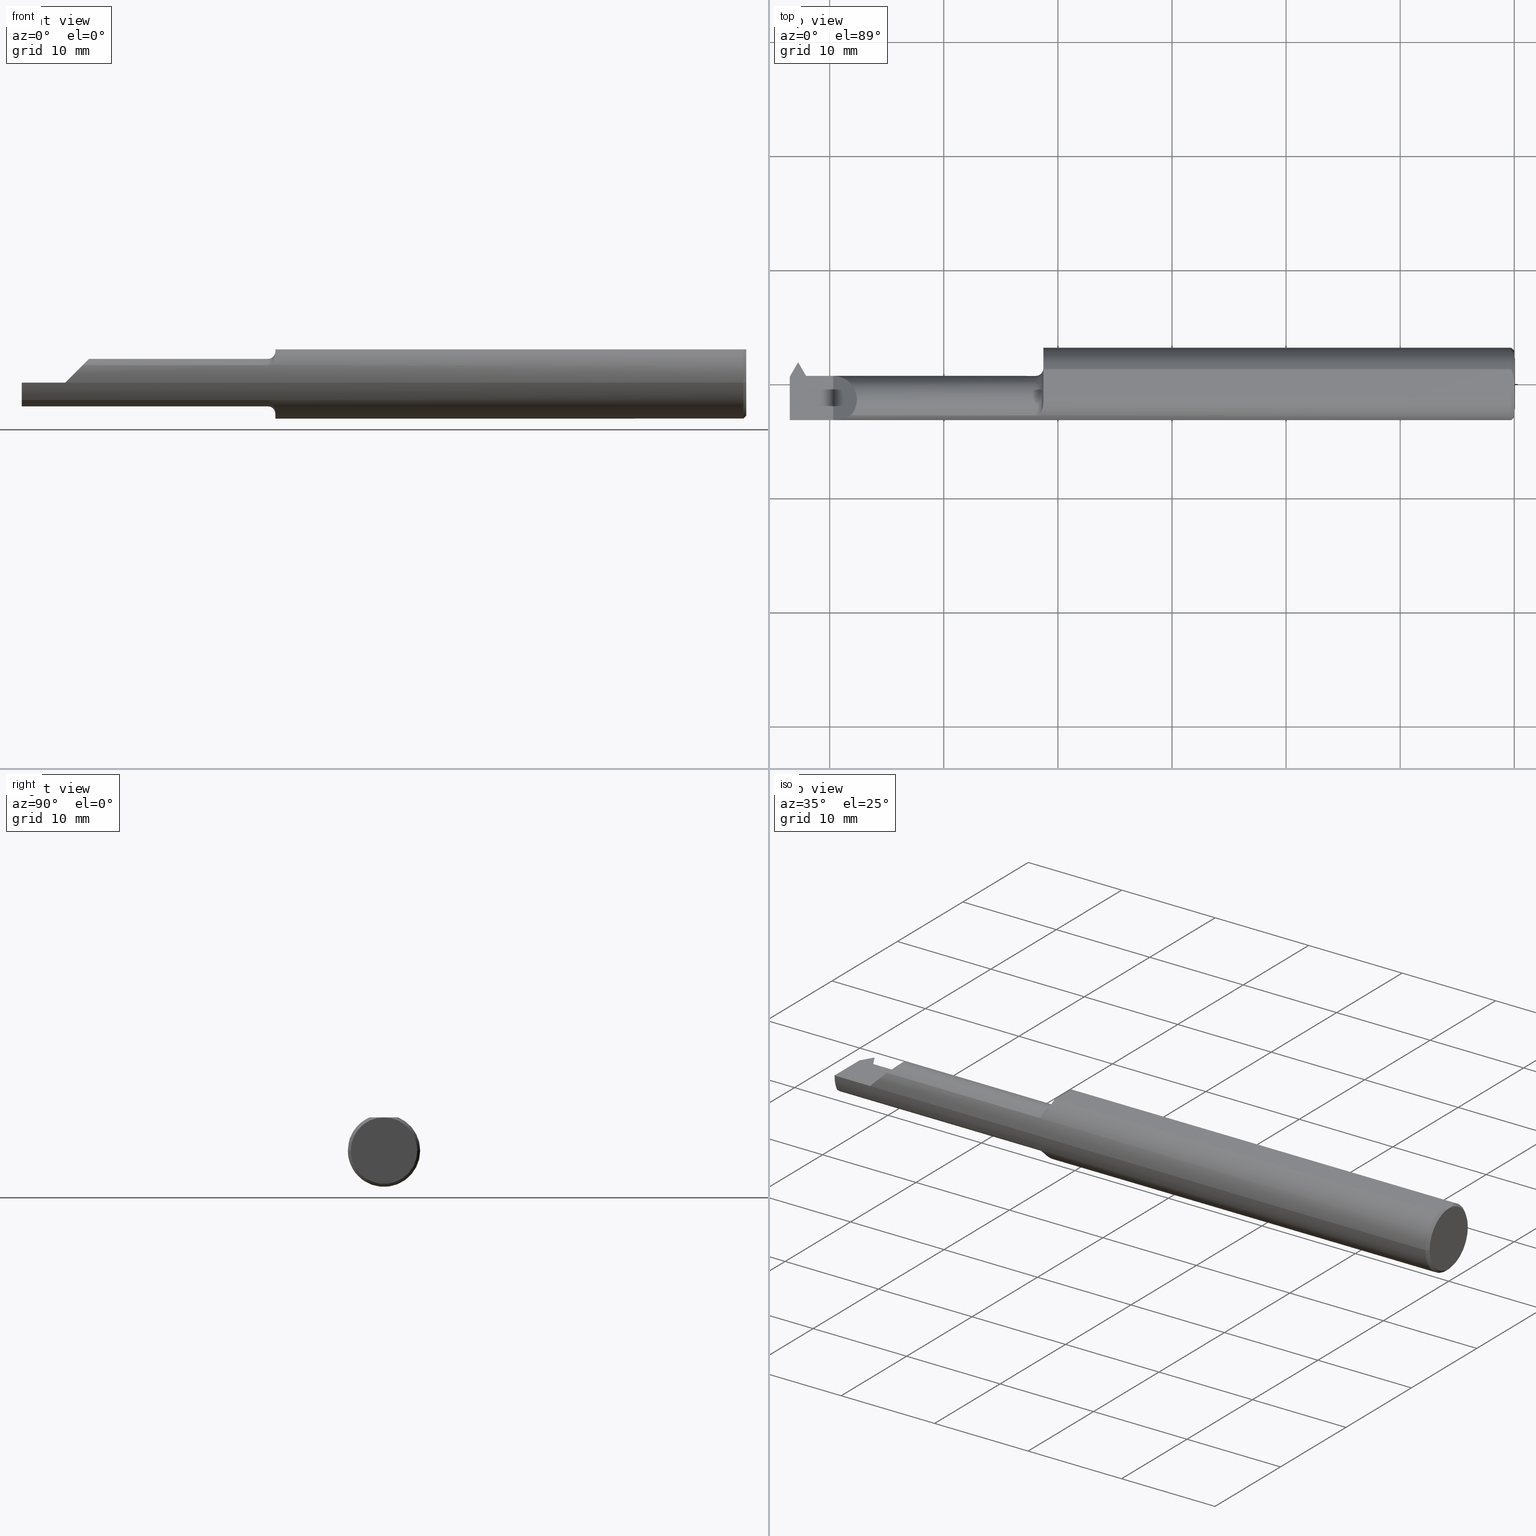
[diagram: canonical four-view strip — front | top / right | iso, engineering-drawing reading convention]
A machine part, canonical four-view strip (front | top / right | iso — engineering-drawing reading convention). The complete STEP part file that produces these views, byte-faithful:
ISO-10303-21;
HEADER;
FILE_DESCRIPTION (( 'STEP AP203' ),
    '1' );
FILE_NAME ('231738-LHTT200800.STEP',
    '2025-01-23T20:45:03',
    ( '' ),
    ( '' ),
    'SwSTEP 2.0',
    'SolidWorks 2024',
    '' );
FILE_SCHEMA (( 'CONFIG_CONTROL_DESIGN' ));
ENDSEC;

DATA;
#1 = EDGE_CURVE ( 'NONE', #304, #16, #294, .T. ) ;
#2 = DATE_AND_TIME ( #472, #800 ) ;
#3 = CARTESIAN_POINT ( 'NONE',  ( -0.009999999999999620304, 0.04895916665957482372, 0.1148500000000000770 ) ) ;
#4 = EDGE_LOOP ( 'NONE', ( #657, #279, #181, #9 ) ) ;
#5 = ORIENTED_EDGE ( 'NONE', *, *, #351, .T. ) ;
#6 = APPROVAL_DATE_TIME ( #353, #799 ) ;
#7 = CARTESIAN_POINT ( 'NONE',  ( 0.000000000000000000, 2.449293598294705921E-16, 0.000000000000000000 ) ) ;
#8 = ORIENTED_EDGE ( 'NONE', *, *, #203, .F. ) ;
#9 = ORIENTED_EDGE ( 'NONE', *, *, #521, .F. ) ;
#10 = CALENDAR_DATE ( 2025, 23, 1 ) ;
#11 = VECTOR ( 'NONE', #809, 39.37007874015748143 ) ;
#12 = AXIS2_PLACEMENT_3D ( 'NONE', #185, #632, #841 ) ;
#13 = ADVANCED_FACE ( 'NONE', ( #828 ), #20, .T. ) ;
#14 = DIRECTION ( 'NONE',  ( -1.000000000000000000, -1.224646799147313518E-16, 0.000000000000000000 ) ) ;
#15 = ORIENTED_EDGE ( 'NONE', *, *, #749, .T. ) ;
#16 = VERTEX_POINT ( 'NONE', #555 ) ;
#17 = DIMENSIONAL_EXPONENTS ( 1.000000000000000000, 0.000000000000000000, 0.000000000000000000, 0.000000000000000000, 0.000000000000000000, 0.000000000000000000, 0.000000000000000000 ) ;
#18 = LINE ( 'NONE', #296, #731 ) ;
#19 = CC_DESIGN_PERSON_AND_ORGANIZATION_ASSIGNMENT ( #412, #626, ( #177 ) ) ;
#20 = PLANE ( 'NONE',  #677 ) ;
#21 = CARTESIAN_POINT ( 'NONE',  ( -2.425000000000000266, -0.05385000000000021020, -0.08200000000000004508 ) ) ;
#22 = EDGE_LOOP ( 'NONE', ( #110, #614, #797, #709 ) ) ;
#23 = DATE_TIME_ROLE ( 'creation_date' ) ;
#24 = VECTOR ( 'NONE', #729, 39.37007874015748854 ) ;
#25 = CARTESIAN_POINT ( 'NONE',  ( -2.328727073528534142, -0.1248500000000001275, 0.02127292647146515614 ) ) ;
#26 = CARTESIAN_POINT ( 'NONE',  ( -1.633690689866805323, -0.1002306550648300598, 0.07463060118330146209 ) ) ;
#27 = CARTESIAN_POINT ( 'NONE',  ( -2.289520233285355921, -0.1092232590529247510, 0.06047976671464364712 ) ) ;
#28 = ADVANCED_FACE ( 'NONE', ( #288 ), #220, .F. ) ;
#29 = CARTESIAN_POINT ( 'NONE',  ( -2.500000000000000000, -0.05385000000000019632, 0.000000000000000000 ) ) ;
#30 = PLANE ( 'NONE',  #301 ) ;
#31 = LINE ( 'NONE', #833, #467 ) ;
#32 = ORIENTED_EDGE ( 'NONE', *, *, #593, .T. ) ;
#33 = CARTESIAN_POINT ( 'NONE',  ( -2.443769237886467494, 0.02814999999999980712, 0.000000000000000000 ) ) ;
#34 = ADVANCED_FACE ( 'NONE', ( #685 ), #757, .F. ) ;
#35 = DIRECTION ( 'NONE',  ( -6.842104469694074932E-17, 0.3768974211598645763, 0.9262550048032365257 ) ) ;
#36 = CONICAL_SURFACE ( 'NONE', #532, 0.1148500000000005350, 0.7853981633974440602 ) ;
#37 = VECTOR ( 'NONE', #371, 39.37007874015748854 ) ;
#38 = EDGE_LOOP ( 'NONE', ( #804, #8, #149, #790 ) ) ;
#39 = TOROIDAL_SURFACE ( 'NONE', #565, 0.1070000000000000950, 0.02499999999999993894 ) ;
#40 = CARTESIAN_POINT ( 'NONE',  ( -2.350000000000000089, 0.02814999999999987651, 0.000000000000000000 ) ) ;
#41 = LINE ( 'NONE', #319, #746 ) ;
#42 = LINE ( 'NONE', #308, #592 ) ;
#43 = VERTEX_POINT ( 'NONE', #366 ) ;
#44 = CARTESIAN_POINT ( 'NONE',  ( -1.650000000000000133, -0.1092232590529247510, 0.06047976671464379284 ) ) ;
#45 = EDGE_CURVE ( 'NONE', #613, #368, #687, .T. ) ;
#46 = LINE ( 'NONE', #440, #786 ) ;
#47 = DIRECTION ( 'NONE',  ( -1.000000000000000000, -1.553500558300393421E-17, -0.000000000000000000 ) ) ;
#48 = ORIENTED_EDGE ( 'NONE', *, *, #556, .T. ) ;
#49 = DIRECTION ( 'NONE',  ( 1.224646799147313518E-16, -1.000000000000000000, 0.000000000000000000 ) ) ;
#50 = ADVANCED_FACE ( 'NONE', ( #228 ), #483, .T. ) ;
#51 = DIRECTION ( 'NONE',  ( 1.000000000000000000, 1.553500558300393113E-17, -0.000000000000000000 ) ) ;
#52 = CYLINDRICAL_SURFACE ( 'NONE', #773, 0.1248500000000000720 ) ;
#53 = ORIENTED_EDGE ( 'NONE', *, *, #509, .F. ) ;
#54 = DIRECTION ( 'NONE',  ( -0.7071067811865516806, 0.000000000000000000, -0.7071067811865433539 ) ) ;
#55 = CIRCLE ( 'NONE', #675, 0.08199999999999996181 ) ;
#56 = AXIS2_PLACEMENT_3D ( 'NONE', #445, #383, #522 ) ;
#57 = EDGE_CURVE ( 'NONE', #523, #43, #499, .T. ) ;
#58 = DIRECTION ( 'NONE',  ( 1.000000000000000000, 1.301231752219315598E-17, 0.000000000000000000 ) ) ;
#59 = CC_DESIGN_PERSON_AND_ORGANIZATION_ASSIGNMENT ( #683, #361, ( #662 ) ) ;
#60 = CARTESIAN_POINT ( 'NONE',  ( -1.639871114992984769, -0.1060941439956720328, -0.06585051326918209269 ) ) ;
#61 = EDGE_LOOP ( 'NONE', ( #673, #575, #337, #359, #83, #589 ) ) ;
#62 = DIRECTION ( 'NONE',  ( 0.7071067811865433539, 0.000000000000000000, -0.7071067811865516806 ) ) ;
#63 = DIRECTION ( 'NONE',  ( 0.000000000000000000, 0.000000000000000000, 1.000000000000000000 ) ) ;
#64 = CARTESIAN_POINT ( 'NONE',  ( -2.044384618943233534, -0.1092232590529246816, 0.06047976671464370957 ) ) ;
#65 = VERTEX_POINT ( 'NONE', #502 ) ;
#66 = PERSON_AND_ORGANIZATION ( #201, #87 ) ;
#67 = CARTESIAN_POINT ( 'NONE',  ( -2.436521776989250210, 0.02814999999999987651, -0.01104662323101167354 ) ) ;
#68 = ADVANCED_FACE ( 'NONE', ( #376 ), #712, .T. ) ;
#69 = ORIENTED_EDGE ( 'NONE', *, *, #758, .T. ) ;
#70 = CIRCLE ( 'NONE', #563, 0.1148500000000005350 ) ;
#71 = VECTOR ( 'NONE', #437, 39.37007874015748143 ) ;
#72 = EDGE_LOOP ( 'NONE', ( #531, #262, #352, #471 ) ) ;
#73 = B_SPLINE_CURVE_WITH_KNOTS ( 'NONE', 3,
 ( #463, #194, #851, #3 ),
 .UNSPECIFIED., .F., .F.,
 ( 4, 4 ),
 ( 0.002328709147988545017, 0.003597800360742833131 ),
 .UNSPECIFIED. ) ;
#74 = VECTOR ( 'NONE', #579, 39.37007874015748854 ) ;
#75 = CARTESIAN_POINT ( 'NONE',  ( -2.432250635869566135, 0.02163139798309859571, -0.03203995253612494654 ) ) ;
#76 = EDGE_LOOP ( 'NONE', ( #503, #807, #699 ) ) ;
#77 = ORIENTED_EDGE ( 'NONE', *, *, #509, .T. ) ;
#78 = DIRECTION ( 'NONE',  ( -1.000000000000000000, -1.224646799147313518E-16, 0.000000000000000000 ) ) ;
#79 = ORIENTED_EDGE ( 'NONE', *, *, #191, .T. ) ;
#80 = EDGE_CURVE ( 'NONE', #252, #761, #42, .T. ) ;
#81 = ORIENTED_EDGE ( 'NONE', *, *, #484, .T. ) ;
#82 = LINE ( 'NONE', #365, #466 ) ;
#83 = ORIENTED_EDGE ( 'NONE', *, *, #484, .F. ) ;
#84 = ORIENTED_EDGE ( 'NONE', *, *, #57, .T. ) ;
#85 = APPROVAL_STATUS ( 'not_yet_approved' ) ;
#86 = EDGE_CURVE ( 'NONE', #240, #152, #635, .T. ) ;
#87 = ORGANIZATION ( 'UNSPECIFIED', 'UNSPECIFIED', '' ) ;
#88 = AXIS2_PLACEMENT_3D ( 'NONE', #723, #251, #789 ) ;
#89 = DIRECTION ( 'NONE',  ( 1.098490779351301563E-17, -0.7071067811865512365, 0.7071067811865439090 ) ) ;
#90 = CC_DESIGN_PERSON_AND_ORGANIZATION_ASSIGNMENT ( #66, #855, ( #302 ) ) ;
#91 = CARTESIAN_POINT ( 'NONE',  ( -1.646904167968482824, -0.1092232590529394892, 0.06047976671461698095 ) ) ;
#92 = DATE_TIME_ROLE ( 'classification_date' ) ;
#93 = DIRECTION ( 'NONE',  ( 1.000000000000000000, 1.224646799147352961E-16, -0.000000000000000000 ) ) ;
#94 = DIRECTION ( 'NONE',  ( 0.8486396879976063623, -0.4899623523104049139, 0.1993679344171975509 ) ) ;
#95 = DIRECTION ( 'NONE',  ( 0.000000000000000000, -1.000000000000000000, 0.000000000000000000 ) ) ;
#96 = DIRECTION ( 'NONE',  ( 1.000000000000000000, 1.224646799147352961E-16, -0.000000000000000000 ) ) ;
#97 = CARTESIAN_POINT ( 'NONE',  ( -1.631572284412212248, -0.09671242829710999245, 0.07917194093600758709 ) ) ;
#98 = EDGE_CURVE ( 'NONE', #283, #317, #31, .T. ) ;
#99 = CARTESIAN_POINT ( 'NONE',  ( -2.438769237886466712, 0.02814999999999975161, -0.08200000000000004508 ) ) ;
#100 = VECTOR ( 'NONE', #166, 39.37007874015748143 ) ;
#101 = VECTOR ( 'NONE', #102, 39.37007874015748143 ) ;
#102 = DIRECTION ( 'NONE',  ( -1.615343685122924065E-17, -0.7071067811865439090, -0.7071067811865511255 ) ) ;
#103 = APPROVAL_PERSON_ORGANIZATION ( #819, #640, #497 ) ;
#104 = FACE_OUTER_BOUND ( 'NONE', #585, .T. ) ;
#105 = DIRECTION ( 'NONE',  ( -0.4999999999999998335, 0.8660254037844385966, 0.000000000000000000 ) ) ;
#106 = ORIENTED_EDGE ( 'NONE', *, *, #369, .T. ) ;
#107 = ADVANCED_FACE ( 'NONE', ( #239 ), #320, .F. ) ;
#108 = CARTESIAN_POINT ( 'NONE',  ( -2.472249999999999837, 0.07314999999999981239, 0.000000000000000000 ) ) ;
#109 = LINE ( 'NONE', #639, #660 ) ;
#110 = ORIENTED_EDGE ( 'NONE', *, *, #98, .F. ) ;
#111 = CARTESIAN_POINT ( 'NONE',  ( -2.436542191595147067, 0.5091060642356595167, 0.4570596332183755606 ) ) ;
#112 = DIRECTION ( 'NONE',  ( 0.000000000000000000, -1.000000000000000000, 1.509903313490213211E-14 ) ) ;
#113 = EDGE_CURVE ( 'NONE', #439, #283, #343, .T. ) ;
#114 = VECTOR ( 'NONE', #189, 39.37007874015748143 ) ;
#115 = B_SPLINE_CURVE_WITH_KNOTS ( 'NONE', 3,
 ( #180, #120, #387, #245, #507, #775 ),
 .UNSPECIFIED., .F., .F.,
 ( 4, 2, 4 ),
 ( 0.001059891666211667301, 0.001694300407100105942, 0.002328709147988545017 ),
 .UNSPECIFIED. ) ;
#116 = AXIS2_PLACEMENT_3D ( 'NONE', #232, #96, #485 ) ;
#117 = ORIENTED_EDGE ( 'NONE', *, *, #86, .F. ) ;
#118 = DIRECTION ( 'NONE',  ( -1.224646799147352961E-16, 1.000000000000000000, 0.000000000000000000 ) ) ;
#119 = DIRECTION ( 'NONE',  ( 0.4999999999999993894, -0.8660254037844391517, 0.000000000000000000 ) ) ;
#120 = CARTESIAN_POINT ( 'NONE',  ( -0.006957100361670798261, -0.04119951620459557512, 0.1148500000000000631 ) ) ;
#121 = ORIENTED_EDGE ( 'NONE', *, *, #679, .T. ) ;
#122 = FACE_OUTER_BOUND ( 'NONE', #211, .T. ) ;
#123 = CARTESIAN_POINT ( 'NONE',  ( -2.044384618943233534, -0.1092232590529246816, -0.06047976671464370957 ) ) ;
#124 = VERTEX_POINT ( 'NONE', #584 ) ;
#125 = CARTESIAN_POINT ( 'NONE',  ( -2.350000000000000089, -0.2500000000000000000, 0.000000000000000000 ) ) ;
#126 = EDGE_CURVE ( 'NONE', #222, #686, #452, .T. ) ;
#127 = EDGE_CURVE ( 'NONE', #523, #613, #170, .T. ) ;
#128 = EDGE_LOOP ( 'NONE', ( #321, #728, #297 ) ) ;
#129 = DIRECTION ( 'NONE',  ( -0.7745966692414896215, 0.4472135954999548746, -0.4472135954999502672 ) ) ;
#130 = VECTOR ( 'NONE', #132, 39.37007874015748143 ) ;
#131 = CARTESIAN_POINT ( 'NONE',  ( -2.289520233285355921, -0.1092232590529247510, 0.06047976671464364712 ) ) ;
#132 = DIRECTION ( 'NONE',  ( 1.615343685122965049E-17, 0.7071067811865439090, 0.7071067811865511255 ) ) ;
#133 = EDGE_LOOP ( 'NONE', ( #53, #48, #356, #821, #713, #528, #340 ) ) ;
#134 = CARTESIAN_POINT ( 'NONE',  ( -2.500000000000000000, -0.1092232590529249175, -0.06047976671464343895 ) ) ;
#135 = ADVANCED_FACE ( 'NONE', ( #849 ), #719, .T. ) ;
#136 = CARTESIAN_POINT ( 'NONE',  ( -1.650000000000000133, -0.1092232590529247510, -0.06047976671464379977 ) ) ;
#137 = ORIENTED_EDGE ( 'NONE', *, *, #425, .F. ) ;
#138 = EDGE_LOOP ( 'NONE', ( #414, #388, #172, #669 ) ) ;
#139 = APPROVAL_DATE_TIME ( #2, #616 ) ;
#140 = FACE_OUTER_BOUND ( 'NONE', #652, .T. ) ;
#141 = ORIENTED_EDGE ( 'NONE', *, *, #351, .F. ) ;
#142 = VECTOR ( 'NONE', #559, 39.37007874015748143 ) ;
#143 = AXIS2_PLACEMENT_3D ( 'NONE', #233, #697, #156 ) ;
#144 = LINE ( 'NONE', #649, #114 ) ;
#145 = ORIENTED_EDGE ( 'NONE', *, *, #770, .T. ) ;
#146 = ADVANCED_FACE ( 'NONE', ( #259 ), #171, .F. ) ;
#147 = PERSON_AND_ORGANIZATION_ROLE ( 'design_supplier' ) ;
#148 = FACE_OUTER_BOUND ( 'NONE', #4, .T. ) ;
#149 = ORIENTED_EDGE ( 'NONE', *, *, #285, .F. ) ;
#150 = ADVANCED_FACE ( 'NONE', ( #574 ), #836, .T. ) ;
#151 = EDGE_CURVE ( 'NONE', #410, #439, #115, .T. ) ;
#152 = VERTEX_POINT ( 'NONE', #175 ) ;
#153 = APPROVAL_STATUS ( 'not_yet_approved' ) ;
#154 = MANIFOLD_SOLID_BREP ( 'Cut-Sweep1', #690 ) ;
#155 = LINE ( 'NONE', #416, #603 ) ;
#156 = DIRECTION ( 'NONE',  ( 0.000000000000000000, -0.3420201433256630508, -0.9396926207859105373 ) ) ;
#157 = ORIENTED_EDGE ( 'NONE', *, *, #287, .T. ) ;
#158 = DIRECTION ( 'NONE',  ( 0.000000000000000000, 0.000000000000000000, 1.000000000000000000 ) ) ;
#159 = DIRECTION ( 'NONE',  ( -1.000000000000000000, 0.000000000000000000, -0.000000000000000000 ) ) ;
#160 = DATE_AND_TIME ( #615, #787 ) ;
#161 = EDGE_CURVE ( 'NONE', #846, #291, #109, .T. ) ;
#162 = CARTESIAN_POINT ( 'NONE',  ( -2.500000000000000000, 0.07314999999999986791, 8.875653457662611807E-19 ) ) ;
#163 = ORIENTED_EDGE ( 'NONE', *, *, #473, .T. ) ;
#164 = DIRECTION ( 'NONE',  ( -1.224646799147352961E-16, 1.000000000000000000, 0.000000000000000000 ) ) ;
#165 = PRODUCT_DEFINITION_SHAPE ( 'NONE', 'NONE',  #177 ) ;
#166 = DIRECTION ( 'NONE',  ( -1.000000000000000000, -1.553500558300393421E-17, -0.000000000000000000 ) ) ;
#167 = LINE ( 'NONE', #199, #801 ) ;
#168 = CARTESIAN_POINT ( 'NONE',  ( -2.350000000000000089, -0.2500000000000000000, 0.000000000000000000 ) ) ;
#169 = AXIS2_PLACEMENT_3D ( 'NONE', #253, #514, #782 ) ;
#170 = CIRCLE ( 'NONE', #451, 0.1248500000000000720 ) ;
#171 = PLANE ( 'NONE',  #854 ) ;
#172 = ORIENTED_EDGE ( 'NONE', *, *, #667, .T. ) ;
#173 = EDGE_CURVE ( 'NONE', #834, #794, #316, .T. ) ;
#174 = DIRECTION ( 'NONE',  ( 0.000000000000000000, -1.000000000000000000, 0.000000000000000000 ) ) ;
#175 = CARTESIAN_POINT ( 'NONE',  ( -2.500000000000000000, -0.05385000000000018938, -0.08200000000000000344 ) ) ;
#176 = ORIENTED_EDGE ( 'NONE', *, *, #127, .T. ) ;
#177 = PRODUCT_DEFINITION ( 'UNKNOWN', '', #261, #583 ) ;
#178 = EDGE_CURVE ( 'NONE', #304, #724, #778, .T. ) ;
#179 = DIRECTION ( 'NONE',  ( -1.000000000000000000, -1.301231752219315598E-17, -0.000000000000000000 ) ) ;
#180 = CARTESIAN_POINT ( 'NONE',  ( -0.009999999999999620304, -0.04895916665957435882, 0.1148500000000000770 ) ) ;
#181 = ORIENTED_EDGE ( 'NONE', *, *, #1, .F. ) ;
#182 = CARTESIAN_POINT ( 'NONE',  ( -3.410902639041114097E-33, 2.195623696957541765E-16, 0.1148500000000000770 ) ) ;
#183 = CARTESIAN_POINT ( 'NONE',  ( -2.436542191595147067, 0.02163139798309951858, -0.03203995253612259425 ) ) ;
#184 = CIRCLE ( 'NONE', #518, 0.1248500000000000720 ) ;
#185 = CARTESIAN_POINT ( 'NONE',  ( 7.644857643677339782E-18, 2.449293598294705921E-16, 0.000000000000000000 ) ) ;
#186 = VECTOR ( 'NONE', #650, 39.37007874015748143 ) ;
#187 = LOCAL_TIME ( 12, 45, 3.000000000000000000, #553 ) ;
#188 = ORIENTED_EDGE ( 'NONE', *, *, #57, .F. ) ;
#189 = DIRECTION ( 'NONE',  ( -0.7071067811865506814, 0.7071067811865444641, 8.659560562354897113E-17 ) ) ;
#190 = DIRECTION ( 'NONE',  ( 0.000000000000000000, -0.1993679344171976064, -0.9799247046208294787 ) ) ;
#191 = EDGE_CURVE ( 'NONE', #65, #834, #213, .T. ) ;
#192 = CARTESIAN_POINT ( 'NONE',  ( -2.472224377193500189, 0.07277377456535082112, -0.001033670886322818946 ) ) ;
#193 = ORIENTED_EDGE ( 'NONE', *, *, #425, .T. ) ;
#194 = CARTESIAN_POINT ( 'NONE',  ( 4.994169234601781236E-16, 0.01683325733139128325, 0.1148500000000000770 ) ) ;
#195 = CARTESIAN_POINT ( 'NONE',  ( -2.470493645008453587, 0.06223089297201400694, -0.02999999999999999542 ) ) ;
#196 = CARTESIAN_POINT ( 'NONE',  ( -2.500000000000000000, -0.05385000000000021020, -0.08200000000000004508 ) ) ;
#197 = ORIENTED_EDGE ( 'NONE', *, *, #770, .F. ) ;
#198 = DIRECTION ( 'NONE',  ( -0.02328694095508821241, -0.3419273951315132676, -0.9394377972167886615 ) ) ;
#199 = CARTESIAN_POINT ( 'NONE',  ( 2.565917908262817721E-16, 0.02204643101733453139, -0.02999999999995447281 ) ) ;
#200 = ORIENTED_EDGE ( 'NONE', *, *, #566, .F. ) ;
#201 = PERSON ( 'UNSPECIFIED', 'UNSPECIFIED', 'UNSPECIFIED', ('UNSPECIFIED'), ('UNSPECIFIED'), ('UNSPECIFIED') ) ;
#202 = CIRCLE ( 'NONE', #315, 0.08200000000000014222 ) ;
#203 = EDGE_CURVE ( 'NONE', #271, #508, #491, .T. ) ;
#204 = CARTESIAN_POINT ( 'NONE',  ( -1.646893101175457508, -0.1092232590529244596, -0.06047976671464402182 ) ) ;
#205 = ORIENTED_EDGE ( 'NONE', *, *, #861, .F. ) ;
#206 =( NAMED_UNIT ( * ) SI_UNIT ( $, .STERADIAN. ) SOLID_ANGLE_UNIT ( ) );
#207 = VERTEX_POINT ( 'NONE', #739 ) ;
#208 = DIRECTION ( 'NONE',  ( 0.7745966692414851806, 0.4472135954999587049, -0.4472135954999541529 ) ) ;
#209 = CARTESIAN_POINT ( 'NONE',  ( -1.633707043473818565, -0.1002470790730144862, -0.07460645910525566527 ) ) ;
#210 = CARTESIAN_POINT ( 'NONE',  ( 7.644857643677339782E-18, 2.449293598294705921E-16, 0.000000000000000000 ) ) ;
#211 = EDGE_LOOP ( 'NONE', ( #200, #266, #539, #32, #121, #594, #779, #622 ) ) ;
#212 = AXIS2_PLACEMENT_3D ( 'NONE', #811, #612, #118 ) ;
#213 =( BOUNDED_CURVE ( )  B_SPLINE_CURVE ( 3, ( #663, #67, #806, #333 ),
 .UNSPECIFIED., .F., .T. ) 
 B_SPLINE_CURVE_WITH_KNOTS ( ( 4, 4 ),
 ( 1.570796326794896780, 1.972222054753649534 ),
 .UNSPECIFIED. ) 
 CURVE ( )  GEOMETRIC_REPRESENTATION_ITEM ( )  RATIONAL_B_SPLINE_CURVE ( ( 1.000000000000000000, 0.9866164697472159517, 0.9866164697472159517, 1.000000000000000000 ) ) 
 REPRESENTATION_ITEM ( '' )  );
#214 = VECTOR ( 'NONE', #623, 39.37007874015748143 ) ;
#215 = VECTOR ( 'NONE', #47, 39.37007874015748143 ) ;
#216 = ORIENTED_EDGE ( 'NONE', *, *, #336, .T. ) ;
#217 = CALENDAR_DATE ( 2025, 23, 1 ) ;
#218 = DIRECTION ( 'NONE',  ( 1.000000000000000000, 1.493979371535119206E-14, 0.000000000000000000 ) ) ;
#219 = ADVANCED_FACE ( 'NONE', ( #401 ), #39, .F. ) ;
#220 = PLANE ( 'NONE',  #360 ) ;
#221 = CC_DESIGN_PERSON_AND_ORGANIZATION_ASSIGNMENT ( #357, #223, ( #261 ) ) ;
#222 = VERTEX_POINT ( 'NONE', #391 ) ;
#223 = PERSON_AND_ORGANIZATION_ROLE ( 'creator' ) ;
#224 = DIRECTION ( 'NONE',  ( 1.224646799147352961E-16, -1.000000000000000000, -7.246360398178432350E-34 ) ) ;
#225 = DIRECTION ( 'NONE',  ( -1.301231752219315598E-17, 1.000000000000000000, 0.000000000000000000 ) ) ;
#226 = ORIENTED_EDGE ( 'NONE', *, *, #672, .T. ) ;
#227 = CARTESIAN_POINT ( 'NONE',  ( -2.345539725769868244, -0.06507951211659712687, -0.4582376919832354401 ) ) ;
#228 = FACE_OUTER_BOUND ( 'NONE', #691, .T. ) ;
#229 = EDGE_CURVE ( 'NONE', #784, #317, #701, .T. ) ;
#230 = COORDINATED_UNIVERSAL_TIME_OFFSET ( 8, 0, .BEHIND. ) ;
#231 = VECTOR ( 'NONE', #820, 39.37007874015748143 ) ;
#232 = CARTESIAN_POINT ( 'NONE',  ( -2.500000000000000000, -6.123233995736767268E-17, 0.000000000000000000 ) ) ;
#233 = CARTESIAN_POINT ( 'NONE',  ( -2.425000000000000266, 0.07314999999999986791, 8.875653457662611807E-19 ) ) ;
#234 = LINE ( 'NONE', #696, #435 ) ;
#235 = DIRECTION ( 'NONE',  ( -0.000000000000000000, 0.000000000000000000, 1.000000000000000000 ) ) ;
#236 = CARTESIAN_POINT ( 'NONE',  ( 7.644857643677369056E-18, 9.362250443266664988E-34, 0.000000000000000000 ) ) ;
#237 = PLANE ( 'NONE',  #700 ) ;
#238 = EDGE_CURVE ( 'NONE', #368, #864, #269, .T. ) ;
#239 = FACE_OUTER_BOUND ( 'NONE', #751, .T. ) ;
#240 = VERTEX_POINT ( 'NONE', #600 ) ;
#241 = AXIS2_PLACEMENT_3D ( 'NONE', #586, #129, #263 ) ;
#242 = LINE ( 'NONE', #777, #550 ) ;
#243 = APPLICATION_CONTEXT ( 'configuration controlled 3d designs of mechanical parts and assemblies' ) ;
#244 =( GEOMETRIC_REPRESENTATION_CONTEXT ( 3 ) GLOBAL_UNCERTAINTY_ASSIGNED_CONTEXT ( ( #711 ) ) GLOBAL_UNIT_ASSIGNED_CONTEXT ( ( #268, #602, #206 ) ) REPRESENTATION_CONTEXT ( 'NONE', 'WORKASPACE' ) );
#245 = CARTESIAN_POINT ( 'NONE',  ( -0.0009329797661887221814, -0.01671851415607249550, 0.1148500000000000354 ) ) ;
#246 = CC_DESIGN_APPROVAL ( #799, ( #662 ) ) ;
#247 = ADVANCED_FACE ( 'NONE', ( #140 ), #52, .T. ) ;
#248 = VERTEX_POINT ( 'NONE', #526 ) ;
#249 = EDGE_CURVE ( 'NONE', #406, #776, #167, .T. ) ;
#250 = LINE ( 'NONE', #717, #564 ) ;
#251 = DIRECTION ( 'NONE',  ( 1.000000000000000000, 1.224646799147352961E-16, -0.000000000000000000 ) ) ;
#252 = VERTEX_POINT ( 'NONE', #533 ) ;
#253 = CARTESIAN_POINT ( 'NONE',  ( -1.625000000000000222, -0.05385000000000018938, 0.000000000000000000 ) ) ;
#254 = CARTESIAN_POINT ( 'NONE',  ( -2.438769237886466712, -3.173403968673572300E-17, 0.000000000000000000 ) ) ;
#255 = ORIENTED_EDGE ( 'NONE', *, *, #706, .T. ) ;
#256 = CARTESIAN_POINT ( 'NONE',  ( -0.009999999999999604691, -0.1248499999999998361, 1.528971528735471346E-17 ) ) ;
#257 = EDGE_CURVE ( 'NONE', #152, #124, #792, .T. ) ;
#258 = CARTESIAN_POINT ( 'NONE',  ( -1.880576533350664992, 1.085751367761671471, -0.02999999999997874159 ) ) ;
#259 = FACE_OUTER_BOUND ( 'NONE', #750, .T. ) ;
#260 = AXIS2_PLACEMENT_3D ( 'NONE', #506, #703, #119 ) ;
#261 = PRODUCT_DEFINITION_FORMATION_WITH_SPECIFIED_SOURCE ( 'ANY', '', #302, .NOT_KNOWN. ) ;
#262 = ORIENTED_EDGE ( 'NONE', *, *, #178, .T. ) ;
#263 = DIRECTION ( 'NONE',  ( -0.4999999999999943934, -0.8660254037844418162, 0.000000000000000000 ) ) ;
#264 = APPROVAL_STATUS ( 'not_yet_approved' ) ;
#265 = CARTESIAN_POINT ( 'NONE',  ( -0.009999999999999620304, 2.437047130303233156E-16, 0.000000000000000000 ) ) ;
#266 = ORIENTED_EDGE ( 'NONE', *, *, #730, .F. ) ;
#267 = CARTESIAN_POINT ( 'NONE',  ( -2.500000000000000000, -0.2500000000000000000, 8.875653457662611807E-19 ) ) ;
#268 =( CONVERSION_BASED_UNIT ( 'INCH', #742 ) LENGTH_UNIT ( ) NAMED_UNIT ( #17 ) );
#269 = LINE ( 'NONE', #64, #578 ) ;
#270 = EDGE_CURVE ( 'NONE', #686, #867, #465, .T. ) ;
#271 = VERTEX_POINT ( 'NONE', #136 ) ;
#272 = DIRECTION ( 'NONE',  ( 0.000000000000000000, 1.000000000000000000, 0.000000000000000000 ) ) ;
#273 = VERTEX_POINT ( 'NONE', #404 ) ;
#274 = AXIS2_PLACEMENT_3D ( 'NONE', #125, #62, #54 ) ;
#275 = CONICAL_SURFACE ( 'NONE', #659, 0.1148500000000005350, 0.7853981633974440602 ) ;
#276 = CC_DESIGN_DATE_AND_TIME_ASSIGNMENT ( #415, #92, ( #662 ) ) ;
#277 = DIRECTION ( 'NONE',  ( -1.000000000000000000, -1.224646799147313518E-16, 0.000000000000000000 ) ) ;
#278 = CARTESIAN_POINT ( 'NONE',  ( -6.420210844530075568E-18, 0.1148500000000007709, 1.467739188778106595E-17 ) ) ;
#279 = ORIENTED_EDGE ( 'NONE', *, *, #692, .F. ) ;
#280 = VERTEX_POINT ( 'NONE', #278 ) ;
#281 = CARTESIAN_POINT ( 'NONE',  ( -2.438769237886466712, -0.02995356898271049964, -0.08200000000000004508 ) ) ;
#282 = CARTESIAN_POINT ( 'NONE',  ( -2.438769237886466712, 0.04009821550864434841, -0.01194821550864447017 ) ) ;
#283 = VERTEX_POINT ( 'NONE', #408 ) ;
#284 = ORIENTED_EDGE ( 'NONE', *, *, #98, .T. ) ;
#285 = EDGE_CURVE ( 'NONE', #368, #271, #202, .T. ) ;
#286 = DIRECTION ( 'NONE',  ( -1.000000000000000000, 0.000000000000000000, 0.000000000000000000 ) ) ;
#287 = EDGE_CURVE ( 'NONE', #446, #864, #762, .T. ) ;
#288 = FACE_OUTER_BOUND ( 'NONE', #720, .T. ) ;
#289 = AXIS2_PLACEMENT_3D ( 'NONE', #267, #393, #327 ) ;
#290 = CIRCLE ( 'NONE', #771, 0.1248500000000000720 ) ;
#291 = VERTEX_POINT ( 'NONE', #642 ) ;
#292 = APPROVAL_DATE_TIME ( #567, #640 ) ;
#293 = CARTESIAN_POINT ( 'NONE',  ( -2.308130552538913083, -0.1195282781184592580, 0.04186944746108600679 ) ) ;
#294 = LINE ( 'NONE', #430, #101 ) ;
#295 = ORIENTED_EDGE ( 'NONE', *, *, #203, .T. ) ;
#296 = CARTESIAN_POINT ( 'NONE',  ( -2.500000000000000000, -0.04895916665957467107, 0.1148500000000000770 ) ) ;
#297 = ORIENTED_EDGE ( 'NONE', *, *, #311, .T. ) ;
#298 = ADVANCED_FACE ( 'NONE', ( #318 ), #843, .T. ) ;
#299 = CARTESIAN_POINT ( 'NONE',  ( -2.500000000000000000, -6.123233995736767268E-17, 8.875653457662611807E-19 ) ) ;
#300 = ORIENTED_EDGE ( 'NONE', *, *, #323, .F. ) ;
#301 = AXIS2_PLACEMENT_3D ( 'NONE', #835, #587, #788 ) ;
#302 = PRODUCT ( '231738-LHTT200800', '231738-LHTT200800', '', ( #802 ) ) ;
#303 = LINE ( 'NONE', #227, #37 ) ;
#304 = VERTEX_POINT ( 'NONE', #305 ) ;
#305 = CARTESIAN_POINT ( 'NONE',  ( -2.471506354991546583, 0.06223089297201386816, -0.02999999999999910724 ) ) ;
#306 = EDGE_CURVE ( 'NONE', #867, #406, #500, .T. ) ;
#307 = DIRECTION ( 'NONE',  ( -1.196619440556782523E-16, 1.000000000000000000, 1.776356839400250465E-15 ) ) ;
#308 = CARTESIAN_POINT ( 'NONE',  ( -1.820637620856585981, -1.051145620498308064, 0.000000000000000000 ) ) ;
#309 = CARTESIAN_POINT ( 'NONE',  ( -0.009999999999999620304, 2.437047130303233156E-16, 0.000000000000000000 ) ) ;
#310 = DIRECTION ( 'NONE',  ( 0.1993679344171976064, 0.000000000000000000, -0.9799247046208294787 ) ) ;
#311 = EDGE_CURVE ( 'NONE', #280, #439, #70, .T. ) ;
#312 = ORIENTED_EDGE ( 'NONE', *, *, #229, .T. ) ;
#313 = LINE ( 'NONE', #111, #629 ) ;
#314 = CIRCLE ( 'NONE', #395, 0.08200000000000000344 ) ;
#315 = AXIS2_PLACEMENT_3D ( 'NONE', #676, #348, #95 ) ;
#316 = LINE ( 'NONE', #325, #748 ) ;
#317 = VERTEX_POINT ( 'NONE', #256 ) ;
#318 = FACE_OUTER_BOUND ( 'NONE', #128, .T. ) ;
#319 = CARTESIAN_POINT ( 'NONE',  ( -2.487627606849138306, -0.01769193432694894999, -0.08200000000000004508 ) ) ;
#320 = PLANE ( 'NONE',  #56 ) ;
#321 = ORIENTED_EDGE ( 'NONE', *, *, #113, .T. ) ;
#322 = LINE ( 'NONE', #385, #504 ) ;
#323 = EDGE_CURVE ( 'NONE', #283, #280, #341, .T. ) ;
#324 = DIRECTION ( 'NONE',  ( 0.000000000000000000, -0.1993679344171975787, -0.9799247046208294787 ) ) ;
#325 = CARTESIAN_POINT ( 'NONE',  ( -2.500000000000001332, 0.02163139798309812387, -0.03203995253612482857 ) ) ;
#326 = ORIENTED_EDGE ( 'NONE', *, *, #127, .F. ) ;
#327 = DIRECTION ( 'NONE',  ( -1.000000000000000000, 0.000000000000000000, 5.917102305108406074E-18 ) ) ;
#328 = AXIS2_PLACEMENT_3D ( 'NONE', #29, #634, #386 ) ;
#329 = ORIENTED_EDGE ( 'NONE', *, *, #151, .T. ) ;
#330 = FACE_OUTER_BOUND ( 'NONE', #138, .T. ) ;
#331 = CARTESIAN_POINT ( 'NONE',  ( -2.471000000000000085, 0.5501675587624087482, 0.4570596332183755606 ) ) ;
#332 = EDGE_CURVE ( 'NONE', #252, #867, #322, .T. ) ;
#333 = CARTESIAN_POINT ( 'NONE',  ( -2.432250635869566135, 0.02163139798309859571, -0.03203995253612494654 ) ) ;
#334 = ORIENTED_EDGE ( 'NONE', *, *, #702, .T. ) ;
#335 = DIRECTION ( 'NONE',  ( 1.000000000000000000, 1.224646799147352961E-16, -0.000000000000000000 ) ) ;
#336 = EDGE_CURVE ( 'NONE', #439, #248, #73, .T. ) ;
#337 = ORIENTED_EDGE ( 'NONE', *, *, #257, .F. ) ;
#338 = DIRECTION ( 'NONE',  ( -0.4999999999999998335, 0.8660254037844388186, 0.000000000000000000 ) ) ;
#339 = CARTESIAN_POINT ( 'NONE',  ( -1.644143490399504470, -0.1083244193956729023, -0.06211342568704036893 ) ) ;
#340 = ORIENTED_EDGE ( 'NONE', *, *, #126, .F. ) ;
#341 = CIRCLE ( 'NONE', #212, 0.1148500000000005350 ) ;
#342 = AXIS2_PLACEMENT_3D ( 'NONE', #688, #89, #429 ) ;
#343 = CIRCLE ( 'NONE', #12, 0.1148500000000005350 ) ;
#344 = APPROVAL_PERSON_ORGANIZATION ( #620, #799, #765 ) ;
#345 =( BOUNDED_CURVE ( )  B_SPLINE_CURVE ( 3, ( #627, #25, #293, #554 ),
 .UNSPECIFIED., .F., .F. ) 
 B_SPLINE_CURVE_WITH_KNOTS ( ( 4, 4 ),
 ( 4.712388980384689674, 5.218088401039801205 ),
 .UNSPECIFIED. ) 
 CURVE ( )  GEOMETRIC_REPRESENTATION_ITEM ( )  RATIONAL_B_SPLINE_CURVE ( ( 1.000000000000000000, 0.9788023059027126660, 0.9788023059027126660, 1.000000000000000000 ) ) 
 REPRESENTATION_ITEM ( '' )  );
#346 = ORIENTED_EDGE ( 'NONE', *, *, #80, .T. ) ;
#347 = CARTESIAN_POINT ( 'NONE',  ( -2.500000000000000000, -0.05385000000000021020, 0.000000000000000000 ) ) ;
#348 = DIRECTION ( 'NONE',  ( -1.000000000000000000, -1.301231752219315598E-17, -0.000000000000000000 ) ) ;
#349 = FACE_OUTER_BOUND ( 'NONE', #850, .T. ) ;
#350 = ORIENTED_EDGE ( 'NONE', *, *, #672, .F. ) ;
#351 = EDGE_CURVE ( 'NONE', #817, #273, #529, .T. ) ;
#352 = ORIENTED_EDGE ( 'NONE', *, *, #566, .T. ) ;
#353 = DATE_AND_TIME ( #217, #187 ) ;
#354 = PLANE ( 'NONE',  #289 ) ;
#355 = EDGE_LOOP ( 'NONE', ( #759, #808, #479, #106 ) ) ;
#356 = ORIENTED_EDGE ( 'NONE', *, *, #86, .T. ) ;
#357 = PERSON_AND_ORGANIZATION ( #201, #87 ) ;
#358 = CARTESIAN_POINT ( 'NONE',  ( -1.625000000000000222, -0.06535139275766770062, 0.1063800637555453732 ) ) ;
#359 = ORIENTED_EDGE ( 'NONE', *, *, #856, .F. ) ;
#360 = AXIS2_PLACEMENT_3D ( 'NONE', #486, #94, #569 ) ;
#361 = PERSON_AND_ORGANIZATION_ROLE ( 'classification_officer' ) ;
#362 = EDGE_CURVE ( 'NONE', #280, #784, #144, .T. ) ;
#363 = LINE ( 'NONE', #99, #519 ) ;
#364 = CARTESIAN_POINT ( 'NONE',  ( -2.438769237886466712, 0.02814999999999975161, 0.000000000000000000 ) ) ;
#365 = CARTESIAN_POINT ( 'NONE',  ( -2.425000000000000266, -0.02995356898271049964, -0.08200000000000004508 ) ) ;
#366 = CARTESIAN_POINT ( 'NONE',  ( -1.625000000000000222, 0.04895916665957480984, 0.1148500000000000770 ) ) ;
#367 = FACE_OUTER_BOUND ( 'NONE', #608, .T. ) ;
#368 = VERTEX_POINT ( 'NONE', #44 ) ;
#369 = EDGE_CURVE ( 'NONE', #406, #222, #721, .T. ) ;
#370 = CIRCLE ( 'NONE', #169, 0.1070000000000000812 ) ;
#371 = DIRECTION ( 'NONE',  ( -0.1955200734030769216, 0.1955200734030739795, 0.9610118635026895229 ) ) ;
#372 = DIRECTION ( 'NONE',  ( 1.000000000000000000, 1.224646799147352961E-16, -0.000000000000000000 ) ) ;
#373 = ORIENTED_EDGE ( 'NONE', *, *, #311, .F. ) ;
#374 = ADVANCED_FACE ( 'NONE', ( #330 ), #455, .T. ) ;
#375 = DIRECTION ( 'NONE',  ( -1.000000000000000000, -1.224646799147313518E-16, 0.000000000000000000 ) ) ;
#376 = FACE_OUTER_BOUND ( 'NONE', #417, .T. ) ;
#377 = ORIENTED_EDGE ( 'NONE', *, *, #793, .F. ) ;
#378 = LINE ( 'NONE', #638, #411 ) ;
#379 = DIRECTION ( 'NONE',  ( 0.9799247046208295897, 1.275109140436757286E-17, 0.1993679344171976342 ) ) ;
#380 = ORIENTED_EDGE ( 'NONE', *, *, #537, .F. ) ;
#381 = DIRECTION ( 'NONE',  ( 0.000000000000000000, -0.7071067811865437980, -0.7071067811865511255 ) ) ;
#382 = VECTOR ( 'NONE', #93, 39.37007874015748143 ) ;
#383 = DIRECTION ( 'NONE',  ( -1.770073149545059408E-33, 1.139409406766874601E-16, -1.000000000000000000 ) ) ;
#384 = EDGE_LOOP ( 'NONE', ( #141, #77, #842, #397, #145, #205 ) ) ;
#385 = CARTESIAN_POINT ( 'NONE',  ( -2.469725732897547932, 0.07350631932699550064, 0.0009789793050357601528 ) ) ;
#386 = DIRECTION ( 'NONE',  ( 0.000000000000000000, -1.000000000000000000, 0.000000000000000000 ) ) ;
#387 = CARTESIAN_POINT ( 'NONE',  ( -0.004414493321356822465, -0.03313351293251423635, 0.1148500000000000909 ) ) ;
#388 = ORIENTED_EDGE ( 'NONE', *, *, #863, .F. ) ;
#389 = CARTESIAN_POINT ( 'NONE',  ( -0.009999999999999620304, -0.04895916665957435882, 0.1148500000000000770 ) ) ;
#390 = CARTESIAN_POINT ( 'NONE',  ( -4.205551930876778585E-16, 0.02815000000003626407, 0.000000000000000000 ) ) ;
#391 = CARTESIAN_POINT ( 'NONE',  ( -2.447293135081652693, -0.02995356898271057944, -0.08200000000000004508 ) ) ;
#392 = ORIENTED_EDGE ( 'NONE', *, *, #861, .T. ) ;
#393 = DIRECTION ( 'NONE',  ( -5.917102305108406074E-18, 0.000000000000000000, -1.000000000000000000 ) ) ;
#394 = EDGE_CURVE ( 'NONE', #317, #410, #184, .T. ) ;
#395 = AXIS2_PLACEMENT_3D ( 'NONE', #347, #51, #674 ) ;
#396 = AXIS2_PLACEMENT_3D ( 'NONE', #783, #372, #580 ) ;
#397 = ORIENTED_EDGE ( 'NONE', *, *, #249, .T. ) ;
#398 = FACE_OUTER_BOUND ( 'NONE', #384, .T. ) ;
#399 = EDGE_CURVE ( 'NONE', #207, #794, #434, .T. ) ;
#400 = CC_DESIGN_DATE_AND_TIME_ASSIGNMENT ( #160, #23, ( #177 ) ) ;
#401 = FACE_OUTER_BOUND ( 'NONE', #38, .T. ) ;
#402 = ORIENTED_EDGE ( 'NONE', *, *, #826, .F. ) ;
#403 = FACE_OUTER_BOUND ( 'NONE', #22, .T. ) ;
#404 = CARTESIAN_POINT ( 'NONE',  ( -2.438769237886466712, -0.02453410292290364100, -0.07658053394019313787 ) ) ;
#405 = ORIENTED_EDGE ( 'NONE', *, *, #336, .F. ) ;
#406 = VERTEX_POINT ( 'NONE', #795 ) ;
#407 = CARTESIAN_POINT ( 'NONE',  ( 0.000000000000000000, 0.000000000000000000, 0.000000000000000000 ) ) ;
#408 = CARTESIAN_POINT ( 'NONE',  ( 2.170992613188475359E-17, -0.1148500000000002991, 0.000000000000000000 ) ) ;
#409 = ADVANCED_FACE ( 'NONE', ( #122 ), #354, .F. ) ;
#410 = VERTEX_POINT ( 'NONE', #389 ) ;
#411 = VECTOR ( 'NONE', #324, 39.37007874015748143 ) ;
#412 = PERSON_AND_ORGANIZATION ( #201, #87 ) ;
#413 = DIRECTION ( 'NONE',  ( 0.4999999999999988343, -0.8660254037844391517, -2.138614678297480593E-15 ) ) ;
#414 = ORIENTED_EDGE ( 'NONE', *, *, #781, .T. ) ;
#415 = DATE_AND_TIME ( #545, #716 ) ;
#416 = CARTESIAN_POINT ( 'NONE',  ( -2.500000000000000000, 0.04895916665957451147, 0.1148500000000000770 ) ) ;
#417 = EDGE_LOOP ( 'NONE', ( #694, #15, #641, #380, #176, #601, #442 ) ) ;
#418 = ADVANCED_FACE ( 'NONE', ( #653 ), #36, .T. ) ;
#419 = SHAPE_DEFINITION_REPRESENTATION ( #165, #557 ) ;
#420 = CARTESIAN_POINT ( 'NONE',  ( -1.625000000000000222, -0.06535139275660113711, -0.1063800637556606699 ) ) ;
#421 = CARTESIAN_POINT ( 'NONE',  ( -1.625000000000000222, -0.06535139275766770062, 0.1063800637555453732 ) ) ;
#422 = VECTOR ( 'NONE', #595, 39.37007874015748854 ) ;
#423 = CC_DESIGN_APPROVAL ( #616, ( #177 ) ) ;
#424 = DIRECTION ( 'NONE',  ( 1.000000000000000000, 0.000000000000000000, -0.000000000000000000 ) ) ;
#425 = EDGE_CURVE ( 'NONE', #406, #761, #590, .T. ) ;
#426 = ORIENTED_EDGE ( 'NONE', *, *, #556, .F. ) ;
#427 = DIRECTION ( 'NONE',  ( 1.000000000000000000, 1.224646799147352961E-16, -0.000000000000000000 ) ) ;
#428 = COORDINATED_UNIVERSAL_TIME_OFFSET ( 8, 0, .BEHIND. ) ;
#429 = DIRECTION ( 'NONE',  ( 0.000000000000000000, -0.7071067811865437980, -0.7071067811865511255 ) ) ;
#430 = CARTESIAN_POINT ( 'NONE',  ( -2.471506354991546139, 0.06223089297201400694, -0.02999999999999999542 ) ) ;
#431 = CARTESIAN_POINT ( 'NONE',  ( 0.000000000000000000, 2.449293598294705921E-16, 0.000000000000000000 ) ) ;
#432 = CARTESIAN_POINT ( 'NONE',  ( -1.628207506445969122, -0.08891621056626079767, 0.08783733555404946158 ) ) ;
#433 = ADVANCED_FACE ( 'NONE', ( #398 ), #665, .T. ) ;
#434 = CIRCLE ( 'NONE', #548, 0.08200000000000005895 ) ;
#435 = VECTOR ( 'NONE', #218, 39.37007874015748143 ) ;
#436 = VECTOR ( 'NONE', #461, 39.37007874015748143 ) ;
#437 = DIRECTION ( 'NONE',  ( -0.000000000000000000, 1.000000000000000000, -0.000000000000000000 ) ) ;
#438 = DIRECTION ( 'NONE',  ( -1.301231752219315598E-17, 1.000000000000000000, 1.139409406766874601E-16 ) ) ;
#439 = VERTEX_POINT ( 'NONE', #182 ) ;
#440 = CARTESIAN_POINT ( 'NONE',  ( -2.500000000000000000, -0.1248500000000001414, 1.528971528735471346E-17 ) ) ;
#441 = DIRECTION ( 'NONE',  ( 1.224646799147352961E-16, -1.000000000000000000, 0.000000000000000000 ) ) ;
#442 = ORIENTED_EDGE ( 'NONE', *, *, #238, .T. ) ;
#443 = ADVANCED_FACE ( 'NONE', ( #459 ), #725, .F. ) ;
#444 = CARTESIAN_POINT ( 'NONE',  ( -1.625000000000000222, 4.592425496802568672E-17, 0.000000000000000000 ) ) ;
#445 = CARTESIAN_POINT ( 'NONE',  ( -2.500000000000000000, 0.1498500000000002053, 0.1148500000000000909 ) ) ;
#446 = VERTEX_POINT ( 'NONE', #859 ) ;
#447 = DIRECTION ( 'NONE',  ( -1.224646799147352961E-16, 1.000000000000000000, 0.000000000000000000 ) ) ;
#448 = AXIS2_PLACEMENT_3D ( 'NONE', #309, #375, #307 ) ;
#449 = CYLINDRICAL_SURFACE ( 'NONE', #328, 0.08200000000000005895 ) ;
#450 = AXIS2_PLACEMENT_3D ( 'NONE', #444, #456, #501 ) ;
#451 = AXIS2_PLACEMENT_3D ( 'NONE', #769, #845, #112 ) ;
#452 = LINE ( 'NONE', #708, #551 ) ;
#453 = LOCAL_TIME ( 12, 45, 3.000000000000000000, #428 ) ;
#454 = ORIENTED_EDGE ( 'NONE', *, *, #399, .T. ) ;
#455 = PLANE ( 'NONE',  #241 ) ;
#456 = DIRECTION ( 'NONE',  ( 1.000000000000000000, 1.301231752219315598E-17, 0.000000000000000000 ) ) ;
#457 = DIRECTION ( 'NONE',  ( -0.02328694095509172696, 0.3419273951315132676, 0.9394377972167885504 ) ) ;
#458 = ORIENTED_EDGE ( 'NONE', *, *, #591, .F. ) ;
#459 = FACE_OUTER_BOUND ( 'NONE', #76, .T. ) ;
#460 = PERSON_AND_ORGANIZATION ( #201, #87 ) ;
#461 = DIRECTION ( 'NONE',  ( 0.000000000000000000, 1.000000000000000000, 0.000000000000000000 ) ) ;
#462 = EDGE_LOOP ( 'NONE', ( #373, #823, #350, #405 ) ) ;
#463 = CARTESIAN_POINT ( 'NONE',  ( -3.410902639041114097E-33, 2.195623696957541765E-16, 0.1148500000000000770 ) ) ;
#464 = ADVANCED_FACE ( 'NONE', ( #349 ), #492, .T. ) ;
#465 = LINE ( 'NONE', #734, #130 ) ;
#466 = VECTOR ( 'NONE', #286, 39.37007874015748143 ) ;
#467 = VECTOR ( 'NONE', #704, 39.37007874015748854 ) ;
#468 = ORIENTED_EDGE ( 'NONE', *, *, #161, .T. ) ;
#469 = CARTESIAN_POINT ( 'NONE',  ( 0.000000000000000000, 2.449293598294705921E-16, 0.000000000000000000 ) ) ;
#470 = DIRECTION ( 'NONE',  ( -1.000000000000000000, -1.224646799147313518E-16, 0.000000000000000000 ) ) ;
#471 = ORIENTED_EDGE ( 'NONE', *, *, #332, .T. ) ;
#472 = CALENDAR_DATE ( 2025, 23, 1 ) ;
#473 = EDGE_CURVE ( 'NONE', #248, #43, #155, .T. ) ;
#474 = CARTESIAN_POINT ( 'NONE',  ( -1.625408339284841741, -0.07550530484968213940, -0.09961131850253887587 ) ) ;
#475 = ORIENTED_EDGE ( 'NONE', *, *, #730, .T. ) ;
#476 = APPLICATION_PROTOCOL_DEFINITION ( 'international standard', 'config_control_design', 1994, #243 ) ;
#477 = CARTESIAN_POINT ( 'NONE',  ( -1.627023439373395997, -0.08470251846186137301, -0.09191816578063177756 ) ) ;
#478 = DIRECTION ( 'NONE',  ( 1.000000000000000000, 1.224646799147352961E-16, -0.000000000000000000 ) ) ;
#479 = ORIENTED_EDGE ( 'NONE', *, *, #306, .T. ) ;
#480 = CIRCLE ( 'NONE', #116, 0.1248500000000000720 ) ;
#481 = VECTOR ( 'NONE', #457, 39.37007874015748854 ) ;
#482 = CARTESIAN_POINT ( 'NONE',  ( -2.500000000000000000, 0.1248500000000000026, 0.000000000000000000 ) ) ;
#483 = PLANE ( 'NONE',  #493 ) ;
#484 = EDGE_CURVE ( 'NONE', #516, #813, #480, .T. ) ;
#485 = DIRECTION ( 'NONE',  ( 0.000000000000000000, 1.000000000000000000, 0.000000000000000000 ) ) ;
#486 = CARTESIAN_POINT ( 'NONE',  ( -1.885862379143440126, 1.088803152253024153, 0.000000000000000000 ) ) ;
#487 = EDGE_CURVE ( 'NONE', #834, #65, #303, .T. ) ;
#488 = ORIENTED_EDGE ( 'NONE', *, *, #637, .F. ) ;
#489 = LINE ( 'NONE', #766, #100 ) ;
#490 = CARTESIAN_POINT ( 'NONE',  ( -2.436542191595147067, 0.5091060642356595167, 0.4570596332183755606 ) ) ;
#491 = B_SPLINE_CURVE_WITH_KNOTS ( 'NONE', 3,
 ( #810, #204, #339, #60, #866, #209, #857, #597, #477, #474, #862, #803 ),
 .UNSPECIFIED., .F., .F.,
 ( 4, 2, 2, 2, 2, 4 ),
 ( 1.963893730137612966E-07, 0.0002326901895045305538, 0.0004651839896360473537, 0.0009301715898990810076, 0.001395159190162114553, 0.001860146790425148099 ),
 .UNSPECIFIED. ) ;
#492 = CONICAL_SURFACE ( 'NONE', #853, 0.1148500000000005350, 0.7853981633974440602 ) ;
#493 = AXIS2_PLACEMENT_3D ( 'NONE', #490, #159, #235 ) ;
#494 = SECURITY_CLASSIFICATION_LEVEL ( 'unclassified' ) ;
#495 = PLANE ( 'NONE',  #644 ) ;
#496 = CARTESIAN_POINT ( 'NONE',  ( -1.625000000000000666, -0.07054241148903399317, 0.1031911175192854191 ) ) ;
#497 = APPROVAL_ROLE ( '' ) ;
#498 = CARTESIAN_POINT ( 'NONE',  ( -2.500000000000000000, -0.1248500000000001414, 8.875653457662609881E-19 ) ) ;
#499 = LINE ( 'NONE', #571, #732 ) ;
#500 = LINE ( 'NONE', #714, #645 ) ;
#501 = DIRECTION ( 'NONE',  ( 0.000000000000000000, -1.000000000000000000, 0.000000000000000000 ) ) ;
#502 = CARTESIAN_POINT ( 'NONE',  ( -2.438769237886466712, 0.02814999999999973773, 0.000000000000000000 ) ) ;
#503 = ORIENTED_EDGE ( 'NONE', *, *, #287, .F. ) ;
#504 = VECTOR ( 'NONE', #198, 39.37007874015748143 ) ;
#505 = VECTOR ( 'NONE', #655, 39.37007874015748854 ) ;
#506 = CARTESIAN_POINT ( 'NONE',  ( -1.820637620856585981, -1.051145620498308064, 0.000000000000000000 ) ) ;
#507 = CARTESIAN_POINT ( 'NONE',  ( 4.865770761176179423E-16, -0.008414813278457659862, 0.1148500000000000631 ) ) ;
#508 = VERTEX_POINT ( 'NONE', #420 ) ;
#509 = EDGE_CURVE ( 'NONE', #817, #222, #82, .T. ) ;
#510 = CARTESIAN_POINT ( 'NONE',  ( -2.438769237886466712, -0.05385000000000019632, 0.000000000000000000 ) ) ;
#511 = DIRECTION ( 'NONE',  ( -1.000000000000000000, -1.301231752219315598E-17, -0.000000000000000000 ) ) ;
#512 = EDGE_LOOP ( 'NONE', ( #392, #454, #664, #598, #543, #157, #868, #536, #636, #858, #117, #753 ) ) ;
#513 = CARTESIAN_POINT ( 'NONE',  ( -2.447293135081652693, 0.5091060642356595167, 0.4570596332183755606 ) ) ;
#514 = DIRECTION ( 'NONE',  ( -1.000000000000000000, -1.301231752219315598E-17, -0.000000000000000000 ) ) ;
#515 = DIRECTION ( 'NONE',  ( -1.000000000000000000, -1.224646799147352961E-16, 0.000000000000000000 ) ) ;
#516 = VERTEX_POINT ( 'NONE', #827 ) ;
#517 = CARTESIAN_POINT ( 'NONE',  ( -2.436542191595147067, -0.05385000000000019632, 0.000000000000000000 ) ) ;
#518 = AXIS2_PLACEMENT_3D ( 'NONE', #680, #78, #847 ) ;
#519 = VECTOR ( 'NONE', #621, 39.37007874015748143 ) ;
#520 = CARTESIAN_POINT ( 'NONE',  ( -2.470493645008453587, 0.01023089297201454362, -0.08199999999999998956 ) ) ;
#521 = EDGE_CURVE ( 'NONE', #867, #304, #489, .T. ) ;
#522 = DIRECTION ( 'NONE',  ( 0.000000000000000000, 1.000000000000000000, 1.139409406766874601E-16 ) ) ;
#523 = VERTEX_POINT ( 'NONE', #763 ) ;
#524 = CARTESIAN_POINT ( 'NONE',  ( -2.460065307879167218, -7.562119105517661624E-05, -0.1387333604535656850 ) ) ;
#525 = EDGE_CURVE ( 'NONE', #65, #446, #698, .T. ) ;
#526 = CARTESIAN_POINT ( 'NONE',  ( -0.009999999999999620304, 0.04895916665957482372, 0.1148500000000000770 ) ) ;
#527 = ADVANCED_FACE ( 'NONE', ( #148 ), #568, .F. ) ;
#528 = ORIENTED_EDGE ( 'NONE', *, *, #692, .T. ) ;
#529 = LINE ( 'NONE', #282, #24 ) ;
#530 = CARTESIAN_POINT ( 'NONE',  ( -1.650000000000000133, -0.05385000000000018938, 0.000000000000000000 ) ) ;
#531 = ORIENTED_EDGE ( 'NONE', *, *, #521, .T. ) ;
#532 = AXIS2_PLACEMENT_3D ( 'NONE', #7, #607, #49 ) ;
#533 = CARTESIAN_POINT ( 'NONE',  ( -2.469750000000001222, 0.07315000000000000668, 0.000000000000000000 ) ) ;
#534 = AXIS2_PLACEMENT_3D ( 'NONE', #331, #208, #338 ) ;
#535 = AXIS2_PLACEMENT_3D ( 'NONE', #236, #427, #164 ) ;
#536 = ORIENTED_EDGE ( 'NONE', *, *, #285, .T. ) ;
#537 = EDGE_CURVE ( 'NONE', #523, #410, #18, .T. ) ;
#538 = APPROVAL_ROLE ( '' ) ;
#539 = ORIENTED_EDGE ( 'NONE', *, *, #546, .T. ) ;
#540 = EDGE_LOOP ( 'NONE', ( #426, #5, #255 ) ) ;
#541 = CARTESIAN_POINT ( 'NONE',  ( -2.500000000000000000, 0.01287845212453973993, -0.03000000000000021053 ) ) ;
#542 = CARTESIAN_POINT ( 'NONE',  ( -2.447293135081652693, 0.5091060642356595167, 0.4570596332183755606 ) ) ;
#543 = ORIENTED_EDGE ( 'NONE', *, *, #525, .T. ) ;
#544 = ORIENTED_EDGE ( 'NONE', *, *, #637, .T. ) ;
#545 = CALENDAR_DATE ( 2025, 23, 1 ) ;
#546 = EDGE_CURVE ( 'NONE', #291, #516, #547, .T. ) ;
#547 = LINE ( 'NONE', #299, #715 ) ;
#548 = AXIS2_PLACEMENT_3D ( 'NONE', #517, #658, #785 ) ;
#549 = CARTESIAN_POINT ( 'NONE',  ( -1.644142011591956054, -0.1083236330372056716, 0.06211474020592992057 ) ) ;
#550 = VECTOR ( 'NONE', #710, 39.37007874015748854 ) ;
#551 = VECTOR ( 'NONE', #105, 39.37007874015748854 ) ;
#552 = CC_DESIGN_SECURITY_CLASSIFICATION ( #662, ( #261 ) ) ;
#553 = COORDINATED_UNIVERSAL_TIME_OFFSET ( 8, 0, .BEHIND. ) ;
#554 = CARTESIAN_POINT ( 'NONE',  ( -2.289520233285355921, -0.1092232590529247510, 0.06047976671464364712 ) ) ;
#555 = CARTESIAN_POINT ( 'NONE',  ( -2.471506354991546139, 0.01023089297201454362, -0.08199999999999998956 ) ) ;
#556 = EDGE_CURVE ( 'NONE', #817, #240, #363, .T. ) ;
#557 = ADVANCED_BREP_SHAPE_REPRESENTATION ( '231738-LHTT200800', ( #154, #837 ), #244 ) ;
#558 = ORIENTED_EDGE ( 'NONE', *, *, #749, .F. ) ;
#559 = DIRECTION ( 'NONE',  ( 1.000000000000000000, 1.301231752219315598E-17, 0.000000000000000000 ) ) ;
#560 = DIRECTION ( 'NONE',  ( 1.000000000000000000, 1.301231752219315598E-17, 0.000000000000000000 ) ) ;
#561 = CARTESIAN_POINT ( 'NONE',  ( -2.350000000000000089, -0.1248500000000000998, 0.000000000000000000 ) ) ;
#562 = ORIENTED_EDGE ( 'NONE', *, *, #473, .F. ) ;
#563 = AXIS2_PLACEMENT_3D ( 'NONE', #210, #478, #447 ) ;
#564 = VECTOR ( 'NONE', #722, 39.37007874015748143 ) ;
#565 = AXIS2_PLACEMENT_3D ( 'NONE', #530, #668, #743 ) ;
#566 = EDGE_CURVE ( 'NONE', #724, #252, #617, .T. ) ;
#567 = DATE_AND_TIME ( #10, #453 ) ;
#568 = PLANE ( 'NONE',  #342 ) ;
#569 = DIRECTION ( 'NONE',  ( 0.4999999999999898970, 0.8660254037844443697, 0.000000000000000000 ) ) ;
#570 = FACE_OUTER_BOUND ( 'NONE', #619, .T. ) ;
#571 = CARTESIAN_POINT ( 'NONE',  ( -1.625000000000000222, 0.1498500000000002330, 0.1148500000000000909 ) ) ;
#572 = LINE ( 'NONE', #123, #186 ) ;
#573 = ADVANCED_FACE ( 'NONE', ( #824 ), #495, .F. ) ;
#574 = FACE_OUTER_BOUND ( 'NONE', #61, .T. ) ;
#575 = ORIENTED_EDGE ( 'NONE', *, *, #863, .T. ) ;
#576 = VECTOR ( 'NONE', #747, 39.37007874015748854 ) ;
#577 = APPROVAL_PERSON_ORGANIZATION ( #460, #616, #538 ) ;
#578 = VECTOR ( 'NONE', #656, 39.37007874015748143 ) ;
#579 = DIRECTION ( 'NONE',  ( 0.4999999999999868439, 0.8660254037844462571, 1.752571977742262692E-14 ) ) ;
#580 = DIRECTION ( 'NONE',  ( 0.000000000000000000, 1.000000000000000000, 0.000000000000000000 ) ) ;
#581 = ORIENTED_EDGE ( 'NONE', *, *, #591, .T. ) ;
#582 = DIRECTION ( 'NONE',  ( -0.4999999999999945044, -0.8660254037844419273, 0.000000000000000000 ) ) ;
#583 = DESIGN_CONTEXT ( 'detailed design', #852, 'design' ) ;
#584 = CARTESIAN_POINT ( 'NONE',  ( -2.500000000000000000, -0.03912154787545955165, -0.08200000000000000344 ) ) ;
#585 = EDGE_LOOP ( 'NONE', ( #377, #326, #84, #402, #488 ) ) ;
#586 = CARTESIAN_POINT ( 'NONE',  ( -2.500000000000000000, 0.4999380853429103988, 0.4570596332183755606 ) ) ;
#587 = DIRECTION ( 'NONE',  ( -1.000000000000000000, -1.301231752219315598E-17, 0.000000000000000000 ) ) ;
#588 = DIRECTION ( 'NONE',  ( 0.4999999999999993894, -0.8660254037844390407, 0.000000000000000000 ) ) ;
#589 = ORIENTED_EDGE ( 'NONE', *, *, #546, .F. ) ;
#590 = LINE ( 'NONE', #524, #422 ) ;
#591 = EDGE_CURVE ( 'NONE', #605, #784, #693, .T. ) ;
#592 = VECTOR ( 'NONE', #588, 39.37007874015748854 ) ;
#593 = EDGE_CURVE ( 'NONE', #516, #610, #830, .T. ) ;
#594 = ORIENTED_EDGE ( 'NONE', *, *, #525, .F. ) ;
#595 = DIRECTION ( 'NONE',  ( 0.1143501000964209230, 0.1980601832175910570, 0.9734969021171832049 ) ) ;
#596 = CARTESIAN_POINT ( 'NONE',  ( -2.500000000000000000, -0.02453410292290388733, -0.07658053394019334603 ) ) ;
#597 = CARTESIAN_POINT ( 'NONE',  ( -1.628216217036631663, -0.08893970397190090194, -0.08781254252923881287 ) ) ;
#598 = ORIENTED_EDGE ( 'NONE', *, *, #191, .F. ) ;
#599 = PLANE ( 'NONE',  #534 ) ;
#600 = CARTESIAN_POINT ( 'NONE',  ( -2.438769237886466712, -0.05385000000000018938, -0.08200000000000000344 ) ) ;
#601 = ORIENTED_EDGE ( 'NONE', *, *, #45, .T. ) ;
#602 =( NAMED_UNIT ( * ) PLANE_ANGLE_UNIT ( ) SI_UNIT ( $, .RADIAN. ) );
#603 = VECTOR ( 'NONE', #684, 39.37007874015748143 ) ;
#604 = ORIENTED_EDGE ( 'NONE', *, *, #229, .F. ) ;
#605 = VERTEX_POINT ( 'NONE', #816 ) ;
#606 = APPLICATION_PROTOCOL_DEFINITION ( 'international standard', 'config_control_design', 1994, #852 ) ;
#607 = DIRECTION ( 'NONE',  ( -1.000000000000000000, -1.224646799147313518E-16, 0.000000000000000000 ) ) ;
#608 = EDGE_LOOP ( 'NONE', ( #648, #741, #193, #740, #681, #735 ) ) ;
#609 = EDGE_CURVE ( 'NONE', #761, #65, #234, .T. ) ;
#610 = VERTEX_POINT ( 'NONE', #561 ) ;
#611 = PERSON_AND_ORGANIZATION ( #201, #87 ) ;
#612 = DIRECTION ( 'NONE',  ( 1.000000000000000000, 1.224646799147352961E-16, -0.000000000000000000 ) ) ;
#613 = VERTEX_POINT ( 'NONE', #358 ) ;
#614 = ORIENTED_EDGE ( 'NONE', *, *, #113, .F. ) ;
#615 = CALENDAR_DATE ( 2025, 23, 1 ) ;
#616 = APPROVAL ( #264, 'UNSPECIFIED' ) ;
#617 = LINE ( 'NONE', #162, #142 ) ;
#618 = ORIENTED_EDGE ( 'NONE', *, *, #332, .F. ) ;
#619 = EDGE_LOOP ( 'NONE', ( #818, #618, #346, #137 ) ) ;
#620 = PERSON_AND_ORGANIZATION ( #201, #87 ) ;
#621 = DIRECTION ( 'NONE',  ( 1.301231752219315906E-17, -1.000000000000000000, 0.000000000000000000 ) ) ;
#622 = ORIENTED_EDGE ( 'NONE', *, *, #80, .F. ) ;
#623 = DIRECTION ( 'NONE',  ( 1.000000000000000000, 1.224646799147352961E-16, -0.000000000000000000 ) ) ;
#624 = CARTESIAN_POINT ( 'NONE',  ( -1.625400300771548290, -0.07542150831051155913, 0.09967330204894177259 ) ) ;
#625 = EDGE_CURVE ( 'NONE', #610, #864, #345, .T. ) ;
#626 = PERSON_AND_ORGANIZATION_ROLE ( 'creator' ) ;
#627 = CARTESIAN_POINT ( 'NONE',  ( -2.350000000000000089, -0.1248500000000000998, 0.000000000000000000 ) ) ;
#628 = ORIENTED_EDGE ( 'NONE', *, *, #178, .F. ) ;
#629 = VECTOR ( 'NONE', #381, 39.37007874015748854 ) ;
#630 = CARTESIAN_POINT ( 'NONE',  ( -2.266883813472911680, 0.02814999999999986957, 0.08311618652708725741 ) ) ;
#631 = AXIS2_PLACEMENT_3D ( 'NONE', #647, #515, #441 ) ;
#632 = DIRECTION ( 'NONE',  ( 1.000000000000000000, 1.224646799147352961E-16, -0.000000000000000000 ) ) ;
#633 = ADVANCED_FACE ( 'NONE', ( #367 ), #237, .F. ) ;
#634 = DIRECTION ( 'NONE',  ( -1.000000000000000000, -1.301231752219315598E-17, -0.000000000000000000 ) ) ;
#635 = LINE ( 'NONE', #651, #215 ) ;
#636 = ORIENTED_EDGE ( 'NONE', *, *, #702, .F. ) ;
#637 = EDGE_CURVE ( 'NONE', #508, #605, #829, .T. ) ;
#638 = CARTESIAN_POINT ( 'NONE',  ( -2.436542191595147067, 0.02815000000000130939, 7.111587419714587489E-15 ) ) ;
#639 = CARTESIAN_POINT ( 'NONE',  ( -2.500000000000000000, 0.02152214022315935074, -0.008757457833842336933 ) ) ;
#640 = APPROVAL ( #85, 'UNSPECIFIED' ) ;
#641 = ORIENTED_EDGE ( 'NONE', *, *, #394, .T. ) ;
#642 = CARTESIAN_POINT ( 'NONE',  ( -2.500000000000000000, 0.02508559008996132447, 0.000000000000000000 ) ) ;
#643 = AXIS2_PLACEMENT_3D ( 'NONE', #513, #791, #780 ) ;
#644 = AXIS2_PLACEMENT_3D ( 'NONE', #21, #158, #424 ) ;
#645 = VECTOR ( 'NONE', #413, 39.37007874015748854 ) ;
#646 = CARTESIAN_POINT ( 'NONE',  ( -2.436542191595147067, 0.02204643101728883184, -0.03000000000000015848 ) ) ;
#647 = CARTESIAN_POINT ( 'NONE',  ( -2.500000000000000000, -6.123233995736767268E-17, 0.000000000000000000 ) ) ;
#648 = ORIENTED_EDGE ( 'NONE', *, *, #758, .F. ) ;
#649 = CARTESIAN_POINT ( 'NONE',  ( -1.406506848820696237E-17, 0.1148500000000007709, 1.406506848820741535E-17 ) ) ;
#650 = DIRECTION ( 'NONE',  ( 1.000000000000000000, 1.301231752219315598E-17, 0.000000000000000000 ) ) ;
#651 = CARTESIAN_POINT ( 'NONE',  ( -2.425000000000000266, -0.05385000000000018938, -0.08200000000000000344 ) ) ;
#652 = EDGE_LOOP ( 'NONE', ( #558, #705, #81, #334, #295, #544, #581, #312 ) ) ;
#653 = FACE_OUTER_BOUND ( 'NONE', #462, .T. ) ;
#654 = ADVANCED_FACE ( 'NONE', ( #840 ), #449, .T. ) ;
#655 = DIRECTION ( 'NONE',  ( 0.000000000000000000, -0.7071067811865437980, -0.7071067811865511255 ) ) ;
#656 = DIRECTION ( 'NONE',  ( -1.000000000000000000, -1.301231752219315598E-17, -0.000000000000000000 ) ) ;
#657 = ORIENTED_EDGE ( 'NONE', *, *, #270, .F. ) ;
#658 = DIRECTION ( 'NONE',  ( 1.000000000000000000, -0.000000000000000000, 0.000000000000000000 ) ) ;
#659 = AXIS2_PLACEMENT_3D ( 'NONE', #469, #277, #726 ) ;
#660 = VECTOR ( 'NONE', #35, 39.37007874015748143 ) ;
#661 = DIRECTION ( 'NONE',  ( 0.000000000000000000, -1.000000000000000000, 0.000000000000000000 ) ) ;
#662 = SECURITY_CLASSIFICATION ( '', '', #494 ) ;
#663 = CARTESIAN_POINT ( 'NONE',  ( -2.438769237886466712, 0.02814999999999973773, 0.000000000000000000 ) ) ;
#664 = ORIENTED_EDGE ( 'NONE', *, *, #173, .F. ) ;
#665 = PLANE ( 'NONE',  #643 ) ;
#666 = FACE_OUTER_BOUND ( 'NONE', #355, .T. ) ;
#667 = EDGE_CURVE ( 'NONE', #846, #304, #832, .T. ) ;
#668 = DIRECTION ( 'NONE',  ( -1.000000000000000000, -1.301231752219315598E-17, -0.000000000000000000 ) ) ;
#669 = ORIENTED_EDGE ( 'NONE', *, *, #1, .T. ) ;
#670 = LINE ( 'NONE', #860, #505 ) ;
#671 = DIRECTION ( 'NONE',  ( -1.196619440556782523E-16, 1.000000000000000000, 0.000000000000000000 ) ) ;
#672 = EDGE_CURVE ( 'NONE', #248, #784, #814, .T. ) ;
#673 = ORIENTED_EDGE ( 'NONE', *, *, #161, .F. ) ;
#674 = DIRECTION ( 'NONE',  ( 0.000000000000000000, -1.000000000000000000, 0.000000000000000000 ) ) ;
#675 = AXIS2_PLACEMENT_3D ( 'NONE', #510, #179, #174 ) ;
#676 = CARTESIAN_POINT ( 'NONE',  ( -1.650000000000000133, -0.05385000000000018938, 0.000000000000000000 ) ) ;
#677 = AXIS2_PLACEMENT_3D ( 'NONE', #364, #560, #225 ) ;
#678 = ORIENTED_EDGE ( 'NONE', *, *, #537, .T. ) ;
#679 = EDGE_CURVE ( 'NONE', #610, #446, #774, .T. ) ;
#680 = CARTESIAN_POINT ( 'NONE',  ( -0.009999999999999620304, 2.437047130303233156E-16, 0.000000000000000000 ) ) ;
#681 = ORIENTED_EDGE ( 'NONE', *, *, #487, .F. ) ;
#682 = ADVANCED_FACE ( 'NONE', ( #570 ), #768, .F. ) ;
#683 = PERSON_AND_ORGANIZATION ( #201, #87 ) ;
#684 = DIRECTION ( 'NONE',  ( -1.000000000000000000, -1.224646799147352961E-16, 0.000000000000000000 ) ) ;
#685 = FACE_OUTER_BOUND ( 'NONE', #72, .T. ) ;
#686 = VERTEX_POINT ( 'NONE', #520 ) ;
#687 = B_SPLINE_CURVE_WITH_KNOTS ( 'NONE', 3,
 ( #421, #496, #624, #764, #432, #97, #26, #831, #689, #549, #91, #825 ),
 .UNSPECIFIED., .F., .F.,
 ( 4, 2, 2, 2, 2, 4 ),
 ( 3.030490085935451039E-05, 0.0004889370798618061309, 0.0009475692588642571721, 0.001406201437866708105, 0.001635517527367934005, 0.001864833616869159688 ),
 .UNSPECIFIED. ) ;
#688 = CARTESIAN_POINT ( 'NONE',  ( -2.425000000000000266, 0.06223089297201400694, -0.02999999999999999542 ) ) ;
#689 = CARTESIAN_POINT ( 'NONE',  ( -1.639872773867707467, -0.1060950243526078973, 0.06584904124472054643 ) ) ;
#690 = CLOSED_SHELL ( 'NONE', ( #418, #464, #68, #247, #150, #654, #13, #573, #527, #633, #682, #28, #135, #409, #443, #107, #298, #822, #718, #219, #34, #146, #374, #433, #798, #50 ) ) ;
#691 = EDGE_LOOP ( 'NONE', ( #197, #69, #772 ) ) ;
#692 = EDGE_CURVE ( 'NONE', #16, #686, #250, .T. ) ;
#693 = LINE ( 'NONE', #482, #382 ) ;
#694 = ORIENTED_EDGE ( 'NONE', *, *, #625, .F. ) ;
#695 = CARTESIAN_POINT ( 'NONE',  ( -2.233393231723701522, -0.04792023988988770161, 0.1166067682762972485 ) ) ;
#696 = CARTESIAN_POINT ( 'NONE',  ( -4.205551930876778585E-16, 0.02815000000003626407, 0.000000000000000000 ) ) ;
#697 = DIRECTION ( 'NONE',  ( 1.459813011021671225E-17, -0.9396926207859105373, 0.3420201433256630508 ) ) ;
#698 = LINE ( 'NONE', #752, #231 ) ;
#699 = ORIENTED_EDGE ( 'NONE', *, *, #625, .T. ) ;
#700 = AXIS2_PLACEMENT_3D ( 'NONE', #390, #848, #190 ) ;
#701 = CIRCLE ( 'NONE', #815, 0.1248500000000000720 ) ;
#702 = EDGE_CURVE ( 'NONE', #813, #271, #572, .T. ) ;
#703 = DIRECTION ( 'NONE',  ( -0.8486396879976011443, -0.4899623523104141287, 0.1993679344171976342 ) ) ;
#704 = DIRECTION ( 'NONE',  ( -0.7071067811865503483, -0.7071067811865445751, 0.000000000000000000 ) ) ;
#705 = ORIENTED_EDGE ( 'NONE', *, *, #593, .F. ) ;
#706 = EDGE_CURVE ( 'NONE', #273, #240, #55, .T. ) ;
#707 = DIRECTION ( 'NONE',  ( 1.000000000000000000, 1.224646799147352961E-16, -0.000000000000000000 ) ) ;
#708 = CARTESIAN_POINT ( 'NONE',  ( -2.431372393150862177, -0.05752910290103244867, -0.08200000000000004508 ) ) ;
#709 = ORIENTED_EDGE ( 'NONE', *, *, #394, .F. ) ;
#710 = DIRECTION ( 'NONE',  ( 0.4999999999999898970, 0.8660254037844443697, 0.000000000000000000 ) ) ;
#711 = UNCERTAINTY_MEASURE_WITH_UNIT (LENGTH_MEASURE( 1.000000000000000082E-05 ), #268, 'distance_accuracy_value', 'NONE');
#712 = CYLINDRICAL_SURFACE ( 'NONE', #396, 0.1248500000000000720 ) ;
#713 = ORIENTED_EDGE ( 'NONE', *, *, #781, .F. ) ;
#714 = CARTESIAN_POINT ( 'NONE',  ( -1.825923466649365112, -1.054197404989663855, -0.03000000000000297568 ) ) ;
#715 = VECTOR ( 'NONE', #224, 39.37007874015748143 ) ;
#716 = LOCAL_TIME ( 12, 45, 3.000000000000000000, #755 ) ;
#717 = CARTESIAN_POINT ( 'NONE',  ( -2.425000000000000266, 0.01023089297201450198, -0.08200000000000004508 ) ) ;
#718 = ADVANCED_FACE ( 'NONE', ( #104 ), #30, .T. ) ;
#719 = CYLINDRICAL_SURFACE ( 'NONE', #88, 0.1248500000000000720 ) ;
#720 = EDGE_LOOP ( 'NONE', ( #812, #468, #475, #628 ) ) ;
#721 = LINE ( 'NONE', #542, #576 ) ;
#722 = DIRECTION ( 'NONE',  ( 1.000000000000000000, 1.553500558300393421E-17, -0.000000000000000000 ) ) ;
#723 = CARTESIAN_POINT ( 'NONE',  ( -2.500000000000000000, -6.123233995736767268E-17, 0.000000000000000000 ) ) ;
#724 = VERTEX_POINT ( 'NONE', #108 ) ;
#725 = PLANE ( 'NONE',  #274 ) ;
#726 = DIRECTION ( 'NONE',  ( 1.224646799147313518E-16, -1.000000000000000000, 0.000000000000000000 ) ) ;
#727 = DIRECTION ( 'NONE',  ( 1.000000000000000000, 1.875567992292530954E-14, 1.875567992292550202E-14 ) ) ;
#728 = ORIENTED_EDGE ( 'NONE', *, *, #323, .T. ) ;
#729 = DIRECTION ( 'NONE',  ( -9.201097958895265961E-18, 0.7071067811865437980, 0.7071067811865511255 ) ) ;
#730 = EDGE_CURVE ( 'NONE', #291, #724, #242, .T. ) ;
#731 = VECTOR ( 'NONE', #760, 39.37007874015748143 ) ;
#732 = VECTOR ( 'NONE', #438, 39.37007874015748143 ) ;
#733 = CARTESIAN_POINT ( 'NONE',  ( -1.625000000000000222, 4.592425496802568672E-17, 0.000000000000000000 ) ) ;
#734 = CARTESIAN_POINT ( 'NONE',  ( -2.470493645008453587, 0.06223089297201400694, -0.02999999999999999542 ) ) ;
#735 = ORIENTED_EDGE ( 'NONE', *, *, #173, .T. ) ;
#736 = CC_DESIGN_PERSON_AND_ORGANIZATION_ASSIGNMENT ( #611, #147, ( #261 ) ) ;
#737 = LINE ( 'NONE', #596, #11 ) ;
#738 = PRODUCT_RELATED_PRODUCT_CATEGORY ( 'detail', '', ( #302 ) ) ;
#739 = CARTESIAN_POINT ( 'NONE',  ( -2.436542191595147067, -0.02453410292290377631, -0.07658053394019324889 ) ) ;
#740 = ORIENTED_EDGE ( 'NONE', *, *, #609, .T. ) ;
#741 = ORIENTED_EDGE ( 'NONE', *, *, #249, .F. ) ;
#742 = LENGTH_MEASURE_WITH_UNIT ( LENGTH_MEASURE( 0.02539999999999999897 ), #865 );
#743 = DIRECTION ( 'NONE',  ( 1.301231752219315598E-17, -1.000000000000000000, 0.000000000000000000 ) ) ;
#744 = ORIENTED_EDGE ( 'NONE', *, *, #826, .T. ) ;
#745 = DIRECTION ( 'NONE',  ( 1.000000000000000000, 0.000000000000000000, 0.000000000000000000 ) ) ;
#746 = VECTOR ( 'NONE', #582, 39.37007874015748854 ) ;
#747 = DIRECTION ( 'NONE',  ( 0.000000000000000000, -0.7071067811865437980, -0.7071067811865511255 ) ) ;
#748 = VECTOR ( 'NONE', #511, 39.37007874015748143 ) ;
#749 = EDGE_CURVE ( 'NONE', #610, #317, #46, .T. ) ;
#750 = EDGE_LOOP ( 'NONE', ( #79, #754 ) ) ;
#751 = EDGE_LOOP ( 'NONE', ( #188, #678, #329, #216, #163 ) ) ;
#752 = CARTESIAN_POINT ( 'NONE',  ( -2.500000000000000000, 0.02814999999999985916, 8.875653457662611807E-19 ) ) ;
#753 = ORIENTED_EDGE ( 'NONE', *, *, #706, .F. ) ;
#754 = ORIENTED_EDGE ( 'NONE', *, *, #487, .T. ) ;
#755 = COORDINATED_UNIVERSAL_TIME_OFFSET ( 8, 0, .BEHIND. ) ;
#756 = DIRECTION ( 'NONE',  ( 1.224646799147313518E-16, -1.000000000000000000, 0.000000000000000000 ) ) ;
#757 = PLANE ( 'NONE',  #143 ) ;
#758 = EDGE_CURVE ( 'NONE', #776, #794, #378, .T. ) ;
#759 = ORIENTED_EDGE ( 'NONE', *, *, #126, .T. ) ;
#760 = DIRECTION ( 'NONE',  ( 1.000000000000000000, 1.224646799147352961E-16, -0.000000000000000000 ) ) ;
#761 = VERTEX_POINT ( 'NONE', #33 ) ;
#762 =( BOUNDED_CURVE ( )  B_SPLINE_CURVE ( 3, ( #40, #630, #695, #27 ),
 .UNSPECIFIED., .F., .T. ) 
 B_SPLINE_CURVE_WITH_KNOTS ( ( 4, 4 ),
 ( 1.570796326794896558, 3.882941863891805401 ),
 .UNSPECIFIED. ) 
 CURVE ( )  GEOMETRIC_REPRESENTATION_ITEM ( )  RATIONAL_B_SPLINE_CURVE ( ( 1.000000000000000000, 0.6019579590817373260, 0.6019579590817373260, 1.000000000000000000 ) ) 
 REPRESENTATION_ITEM ( '' )  );
#763 = CARTESIAN_POINT ( 'NONE',  ( -1.625000000000000222, -0.04895916665957456004, 0.1148500000000000770 ) ) ;
#764 = CARTESIAN_POINT ( 'NONE',  ( -1.626996939049467850, -0.08458882217984409202, 0.09202120527030092922 ) ) ;
#765 = APPROVAL_ROLE ( '' ) ;
#766 = CARTESIAN_POINT ( 'NONE',  ( -2.425000000000000266, 0.06223089297201400694, -0.02999999999999999542 ) ) ;
#767 = ORIENTED_EDGE ( 'NONE', *, *, #362, .F. ) ;
#768 = PLANE ( 'NONE',  #260 ) ;
#769 = CARTESIAN_POINT ( 'NONE',  ( -1.625000000000000222, 4.592425496802568672E-17, 0.000000000000000000 ) ) ;
#770 = EDGE_CURVE ( 'NONE', #776, #207, #313, .T. ) ;
#771 = AXIS2_PLACEMENT_3D ( 'NONE', #733, #58, #661 ) ;
#772 = ORIENTED_EDGE ( 'NONE', *, *, #399, .F. ) ;
#773 = AXIS2_PLACEMENT_3D ( 'NONE', #796, #335, #272 ) ;
#774 = LINE ( 'NONE', #168, #71 ) ;
#775 = CARTESIAN_POINT ( 'NONE',  ( -3.410902639041114097E-33, 2.195623696957541765E-16, 0.1148500000000000770 ) ) ;
#776 = VERTEX_POINT ( 'NONE', #646 ) ;
#777 = CARTESIAN_POINT ( 'NONE',  ( -1.885862379143440126, 1.088803152253024153, 0.000000000000000000 ) ) ;
#778 = LINE ( 'NONE', #192, #481 ) ;
#779 = ORIENTED_EDGE ( 'NONE', *, *, #609, .F. ) ;
#780 = DIRECTION ( 'NONE',  ( 0.000000000000000000, 0.7071067811865437980, 0.7071067811865511255 ) ) ;
#781 = EDGE_CURVE ( 'NONE', #16, #124, #41, .T. ) ;
#782 = DIRECTION ( 'NONE',  ( 0.000000000000000000, -1.000000000000000000, 0.000000000000000000 ) ) ;
#783 = CARTESIAN_POINT ( 'NONE',  ( -2.500000000000000000, -6.123233995736767268E-17, 0.000000000000000000 ) ) ;
#784 = VERTEX_POINT ( 'NONE', #844 ) ;
#785 = DIRECTION ( 'NONE',  ( 0.000000000000000000, 1.769871032480657047E-15, 1.000000000000000000 ) ) ;
#786 = VECTOR ( 'NONE', #707, 39.37007874015748143 ) ;
#787 = LOCAL_TIME ( 12, 45, 3.000000000000000000, #230 ) ;
#788 = DIRECTION ( 'NONE',  ( 1.301231752219315598E-17, -1.000000000000000000, 0.000000000000000000 ) ) ;
#789 = DIRECTION ( 'NONE',  ( 0.000000000000000000, 1.000000000000000000, 0.000000000000000000 ) ) ;
#790 = ORIENTED_EDGE ( 'NONE', *, *, #45, .F. ) ;
#791 = DIRECTION ( 'NONE',  ( 0.000000000000000000, 0.7071067811865512365, -0.7071067811865439090 ) ) ;
#792 = LINE ( 'NONE', #196, #436 ) ;
#793 = EDGE_CURVE ( 'NONE', #613, #508, #370, .T. ) ;
#794 = VERTEX_POINT ( 'NONE', #183 ) ;
#795 = CARTESIAN_POINT ( 'NONE',  ( -2.447293135081652693, 0.02204643101728869653, -0.03000000000000026951 ) ) ;
#796 = CARTESIAN_POINT ( 'NONE',  ( -2.500000000000000000, -6.123233995736767268E-17, 0.000000000000000000 ) ) ;
#797 = ORIENTED_EDGE ( 'NONE', *, *, #151, .F. ) ;
#798 = ADVANCED_FACE ( 'NONE', ( #666 ), #599, .T. ) ;
#799 = APPROVAL ( #153, 'UNSPECIFIED' ) ;
#800 = LOCAL_TIME ( 12, 45, 3.000000000000000000, #805 ) ;
#801 = VECTOR ( 'NONE', #727, 39.37007874015748143 ) ;
#802 = MECHANICAL_CONTEXT ( 'NONE', #243, 'mechanical' ) ;
#803 = CARTESIAN_POINT ( 'NONE',  ( -1.625000000000000222, -0.06535139275660113711, -0.1063800637556606699 ) ) ;
#804 = ORIENTED_EDGE ( 'NONE', *, *, #793, .T. ) ;
#805 = COORDINATED_UNIVERSAL_TIME_OFFSET ( 8, 0, .BEHIND. ) ;
#806 = CARTESIAN_POINT ( 'NONE',  ( -2.434319434533398496, 0.02594765754414774667, -0.02187148223771830796 ) ) ;
#807 = ORIENTED_EDGE ( 'NONE', *, *, #679, .F. ) ;
#808 = ORIENTED_EDGE ( 'NONE', *, *, #270, .T. ) ;
#809 = DIRECTION ( 'NONE',  ( 1.000000000000000000, 1.301231752219315598E-17, 0.000000000000000000 ) ) ;
#810 = CARTESIAN_POINT ( 'NONE',  ( -1.650000000000000133, -0.1092232590529247510, -0.06047976671464379977 ) ) ;
#811 = CARTESIAN_POINT ( 'NONE',  ( 7.644857643677339782E-18, 2.449293598294705921E-16, 0.000000000000000000 ) ) ;
#812 = ORIENTED_EDGE ( 'NONE', *, *, #667, .F. ) ;
#813 = VERTEX_POINT ( 'NONE', #134 ) ;
#814 = CIRCLE ( 'NONE', #448, 0.1248500000000000720 ) ;
#815 = AXIS2_PLACEMENT_3D ( 'NONE', #265, #470, #671 ) ;
#816 = CARTESIAN_POINT ( 'NONE',  ( -1.625000000000000222, 0.1248500000000001275, 0.000000000000000000 ) ) ;
#817 = VERTEX_POINT ( 'NONE', #281 ) ;
#818 = ORIENTED_EDGE ( 'NONE', *, *, #306, .F. ) ;
#819 = PERSON_AND_ORGANIZATION ( #201, #87 ) ;
#820 = DIRECTION ( 'NONE',  ( 1.000000000000000000, 1.301231752219315598E-17, 0.000000000000000000 ) ) ;
#821 = ORIENTED_EDGE ( 'NONE', *, *, #257, .T. ) ;
#822 = ADVANCED_FACE ( 'NONE', ( #403 ), #275, .T. ) ;
#823 = ORIENTED_EDGE ( 'NONE', *, *, #362, .T. ) ;
#824 = FACE_OUTER_BOUND ( 'NONE', #133, .T. ) ;
#825 = CARTESIAN_POINT ( 'NONE',  ( -1.650000000000000133, -0.1092232590529247510, 0.06047976671464379284 ) ) ;
#826 = EDGE_CURVE ( 'NONE', #605, #43, #290, .T. ) ;
#827 = CARTESIAN_POINT ( 'NONE',  ( -2.500000000000000000, -0.1248500000000001414, 8.875653457662611807E-19 ) ) ;
#828 = FACE_OUTER_BOUND ( 'NONE', #540, .T. ) ;
#829 = CIRCLE ( 'NONE', #450, 0.1248500000000000720 ) ;
#830 = LINE ( 'NONE', #498, #214 ) ;
#831 = CARTESIAN_POINT ( 'NONE',  ( -1.638167052038310478, -0.1047260336402104225, 0.06802262465471324571 ) ) ;
#832 = LINE ( 'NONE', #258, #74 ) ;
#833 = CARTESIAN_POINT ( 'NONE',  ( 1.406506848820696237E-17, -0.1148500000000002991, 0.000000000000000000 ) ) ;
#834 = VERTEX_POINT ( 'NONE', #75 ) ;
#835 = CARTESIAN_POINT ( 'NONE',  ( -1.625000000000000222, 0.1248500000000003218, 0.000000000000000000 ) ) ;
#836 = PLANE ( 'NONE',  #631 ) ;
#837 = AXIS2_PLACEMENT_3D ( 'NONE', #407, #63, #745 ) ;
#838 = EDGE_LOOP ( 'NONE', ( #458, #744, #562, #226 ) ) ;
#839 = CC_DESIGN_APPROVAL ( #640, ( #261 ) ) ;
#840 = FACE_OUTER_BOUND ( 'NONE', #512, .T. ) ;
#841 = DIRECTION ( 'NONE',  ( -1.224646799147352961E-16, 1.000000000000000000, 0.000000000000000000 ) ) ;
#842 = ORIENTED_EDGE ( 'NONE', *, *, #369, .F. ) ;
#843 = PLANE ( 'NONE',  #535 ) ;
#844 = CARTESIAN_POINT ( 'NONE',  ( -0.009999999999999635916, 0.1248500000000003218, 0.000000000000000000 ) ) ;
#845 = DIRECTION ( 'NONE',  ( 1.000000000000000000, 1.301231752219315598E-17, 0.000000000000000000 ) ) ;
#846 = VERTEX_POINT ( 'NONE', #541 ) ;
#847 = DIRECTION ( 'NONE',  ( -1.196619440556782523E-16, 1.000000000000000000, 0.000000000000000000 ) ) ;
#848 = DIRECTION ( 'NONE',  ( 1.463987294361164390E-14, -0.9799247046208295897, 0.1993679344171976342 ) ) ;
#849 = FACE_OUTER_BOUND ( 'NONE', #838, .T. ) ;
#850 = EDGE_LOOP ( 'NONE', ( #767, #300, #284, #604 ) ) ;
#851 = CARTESIAN_POINT ( 'NONE',  ( -0.003881058084116052395, 0.03335534922718999540, 0.1148500000000000770 ) ) ;
#852 = APPLICATION_CONTEXT ( 'configuration controlled 3d designs of mechanical parts and assemblies' ) ;
#853 = AXIS2_PLACEMENT_3D ( 'NONE', #431, #14, #756 ) ;
#854 = AXIS2_PLACEMENT_3D ( 'NONE', #254, #379, #310 ) ;
#855 = PERSON_AND_ORGANIZATION_ROLE ( 'design_owner' ) ;
#856 = EDGE_CURVE ( 'NONE', #813, #152, #314, .T. ) ;
#857 = CARTESIAN_POINT ( 'NONE',  ( -1.631574539397595558, -0.09671433139066804019, -0.07916850176499981573 ) ) ;
#858 = ORIENTED_EDGE ( 'NONE', *, *, #856, .T. ) ;
#859 = CARTESIAN_POINT ( 'NONE',  ( -2.350000000000000089, 0.02814999999999987651, 0.000000000000000000 ) ) ;
#860 = CARTESIAN_POINT ( 'NONE',  ( -2.500000000000000000, 0.4999380853429103988, 0.4570596332183755606 ) ) ;
#861 = EDGE_CURVE ( 'NONE', #273, #207, #737, .T. ) ;
#862 = CARTESIAN_POINT ( 'NONE',  ( -1.624999999999958256, -0.07054286491513220292, -0.1031908389706531481 ) ) ;
#863 = EDGE_CURVE ( 'NONE', #846, #124, #670, .T. ) ;
#864 = VERTEX_POINT ( 'NONE', #131 ) ;
#865 =( LENGTH_UNIT ( ) NAMED_UNIT ( * ) SI_UNIT ( $, .METRE. ) );
#866 = CARTESIAN_POINT ( 'NONE',  ( -1.638158879394857381, -0.1047178258150699010, -0.06803468955092802084 ) ) ;
#867 = VERTEX_POINT ( 'NONE', #195 ) ;
#868 = ORIENTED_EDGE ( 'NONE', *, *, #238, .F. ) ;
ENDSEC;
END-ISO-10303-21;
